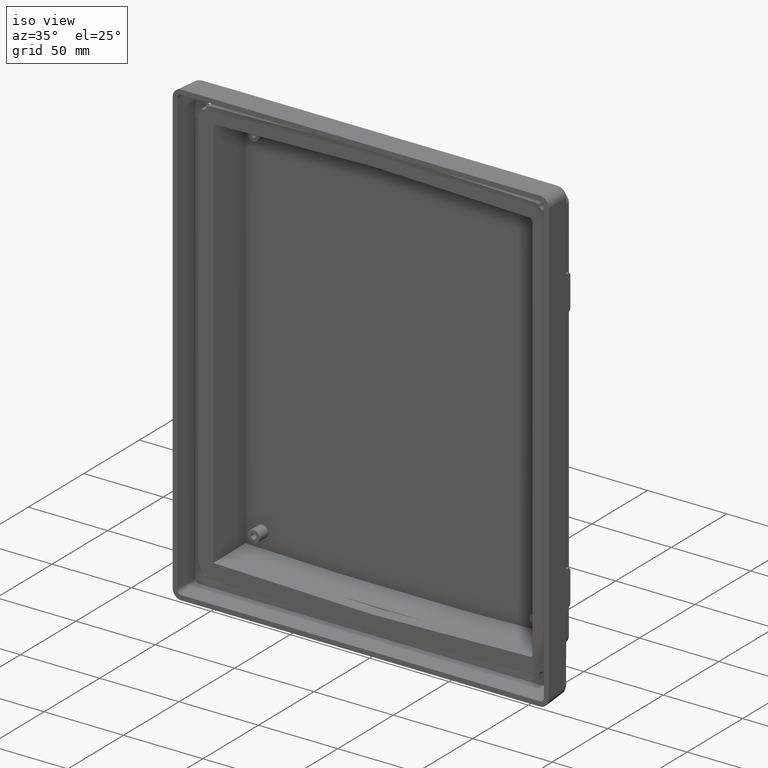
[diagram: clean part render]
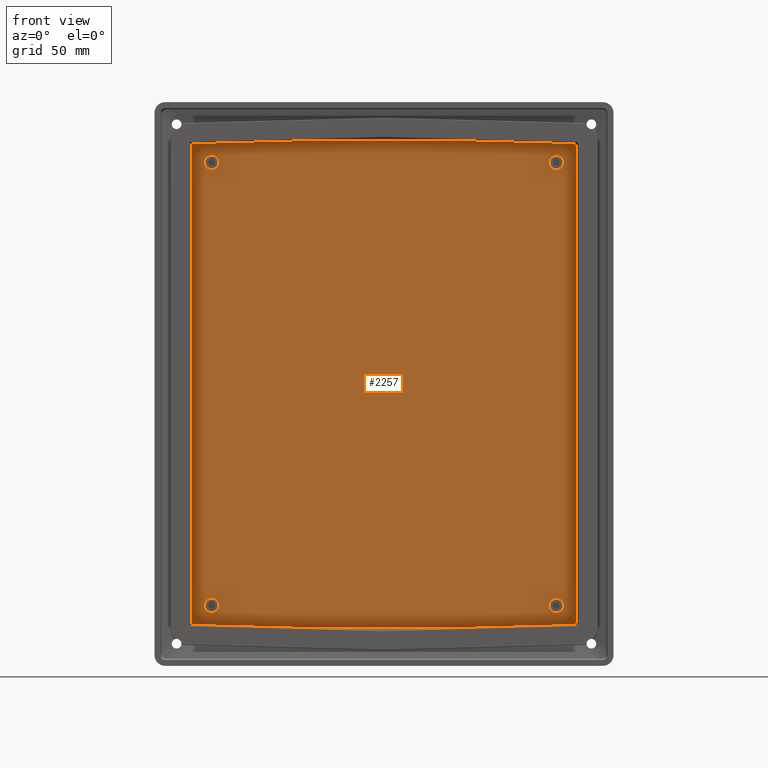
[diagram: tour spotlight — one face highlighted and labeled with its STEP entity id]
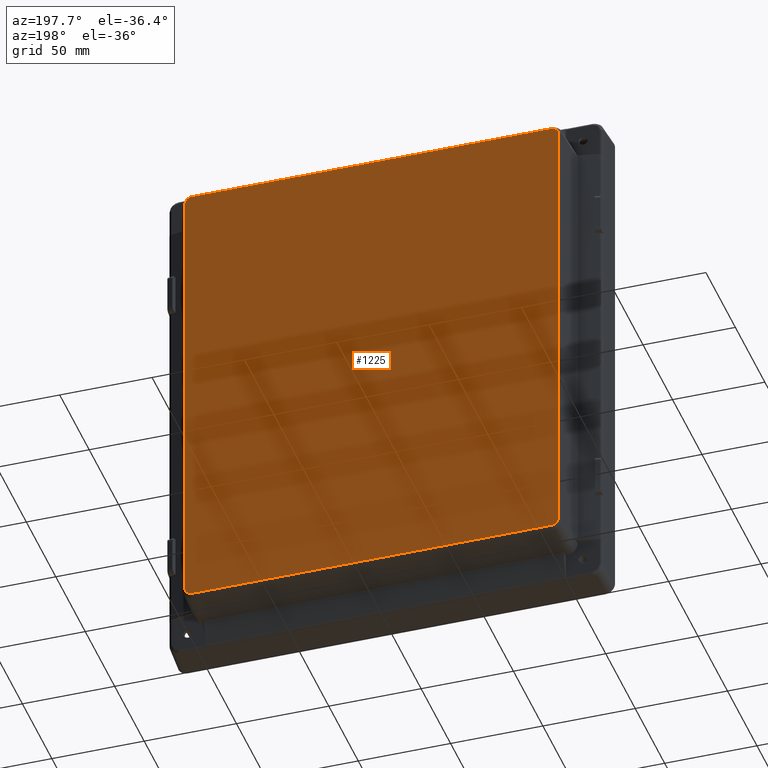
[diagram: tour spotlight — one face highlighted and labeled with its STEP entity id]
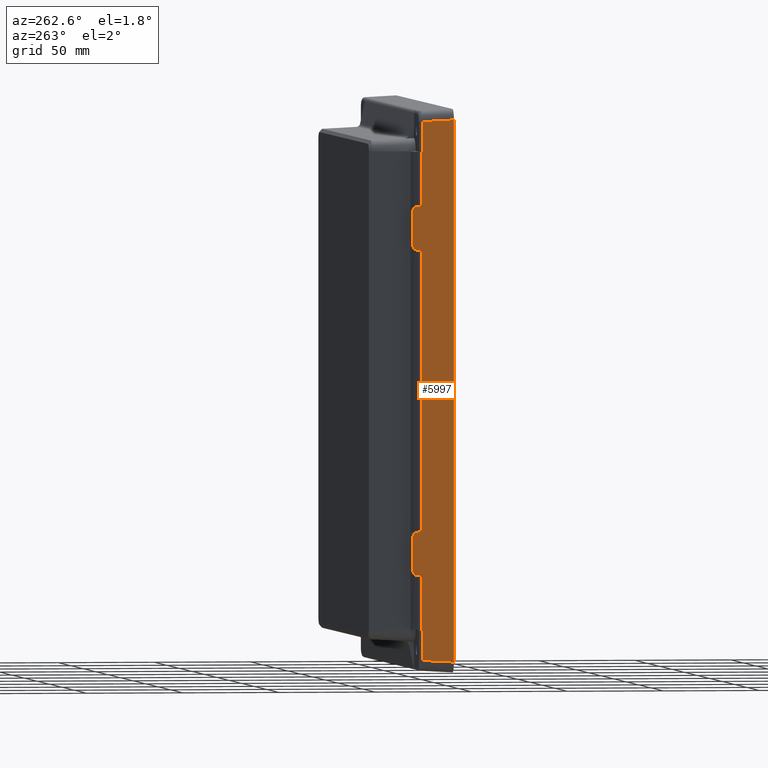
[diagram: tour spotlight — one face highlighted and labeled with its STEP entity id]
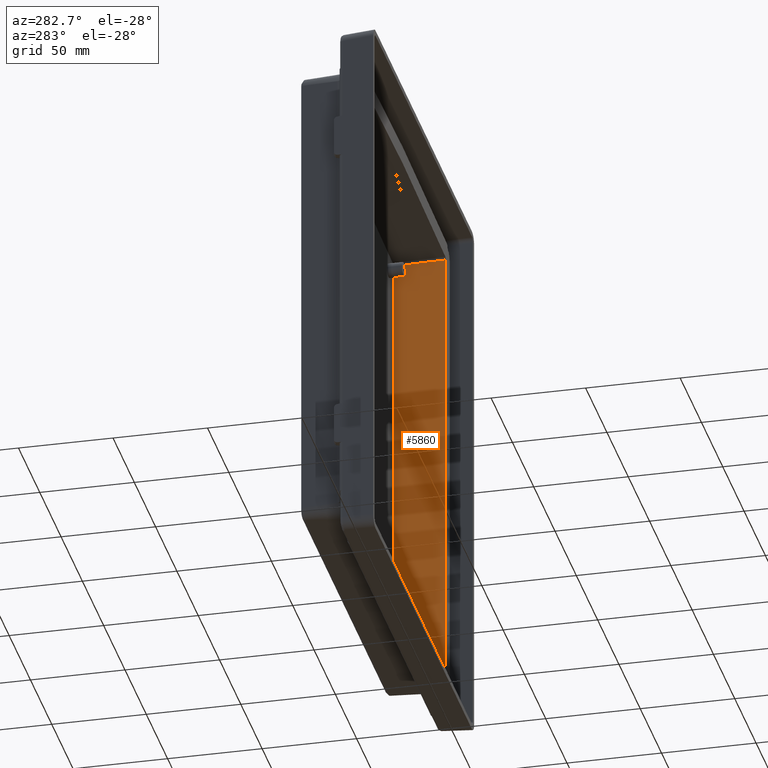
[diagram: tour spotlight — one face highlighted and labeled with its STEP entity id]
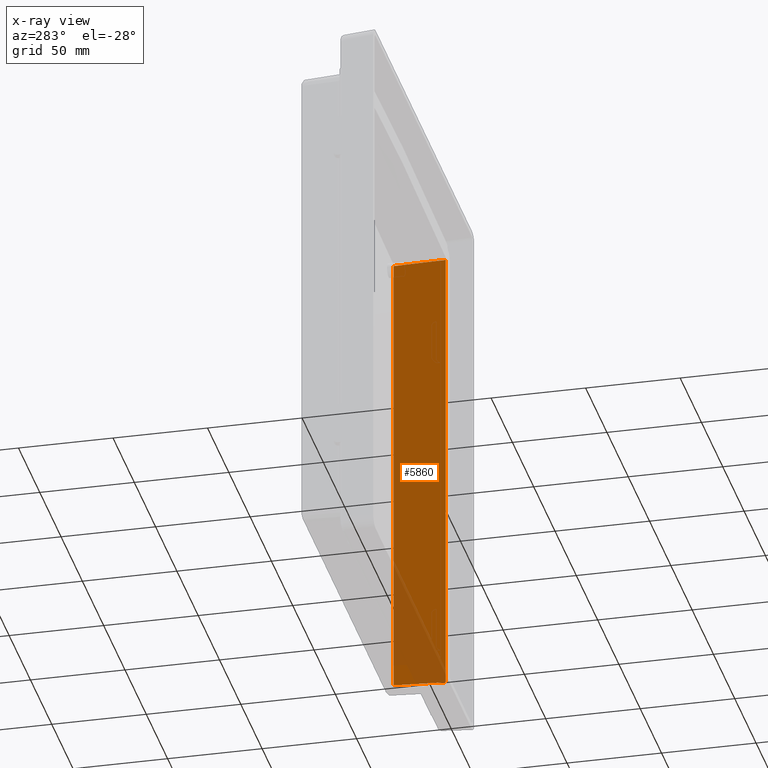
[diagram: x-ray of the same camera — body ghosted, this tour face saturated]
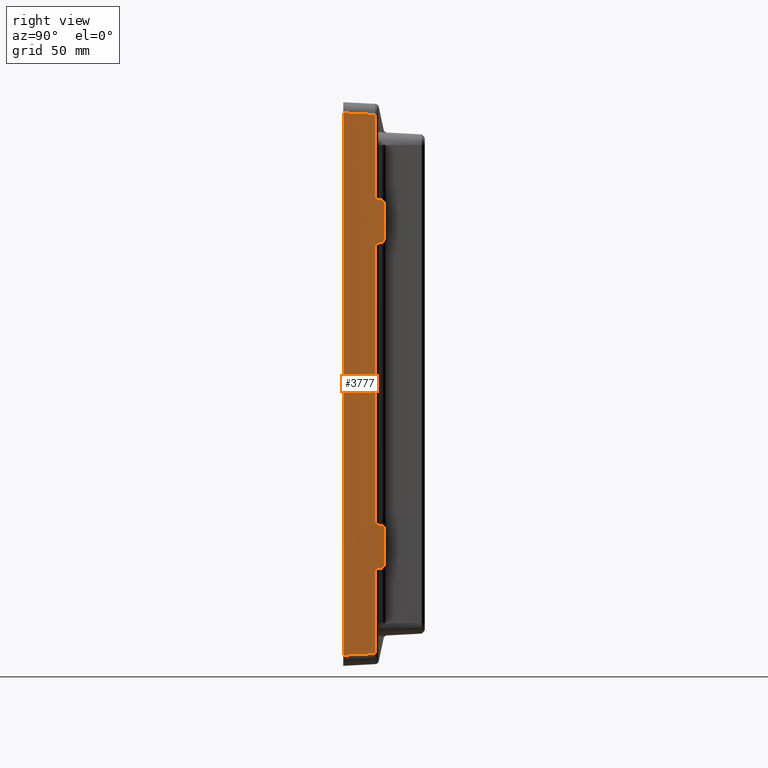
[diagram: tour spotlight — one face highlighted and labeled with its STEP entity id]
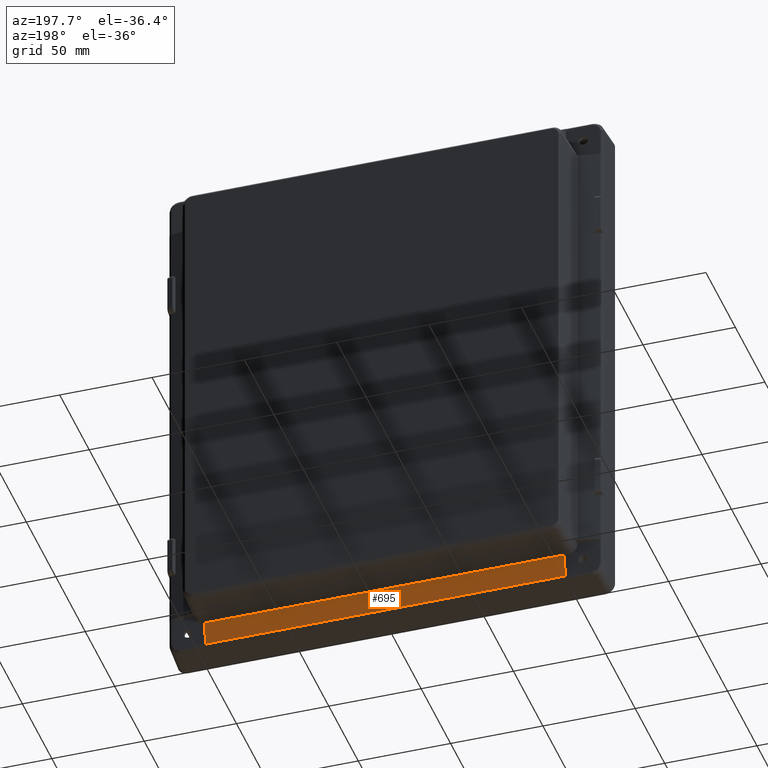
[diagram: tour spotlight — one face highlighted and labeled with its STEP entity id]
A machine part: a face-by-face anatomy tour. The part has 190 B-rep faces; the first image is the clean iso view, then the 6 largest visible faces are spotlighted one at a time (largest first), each with its STEP entity span.

Face 1 — front view, entity #2257. In plain terms, the highlighted planar face has unit normal (0, 1, 0).
Definition (entity closure, byte-faithful):
#14 = AXIS2_PLACEMENT_3D ( 'NONE', #5565, #6540, #2449 ) ;
#60 = CARTESIAN_POINT ( 'NONE',  ( -88.90000000000004800, 30.60000000000000100, 114.2999999999999400 ) ) ;
#93 = CARTESIAN_POINT ( 'NONE',  ( 99.42716768543292000, 30.60000000000000100, 123.4221343239192400 ) ) ;
#116 = CARTESIAN_POINT ( 'NONE',  ( -100.5370706981924700, 30.60000000000000100, -123.9317906277040200 ) ) ;
#120 = CIRCLE ( 'NONE', #3392, 3.750000000000003600 ) ;
#204 = LINE ( 'NONE', #4724, #3445 ) ;
#223 = VERTEX_POINT ( 'NONE', #4790 ) ;
#268 = ORIENTED_EDGE ( 'NONE', *, *, #2587, .T. ) ;
#287 = CIRCLE ( 'NONE', #5394, 3.750000000000003600 ) ;
#334 = CARTESIAN_POINT ( 'NONE',  ( 88.89999999999996300, 30.60000000000000100, -114.3000000000000000 ) ) ;
#399 =( BOUNDED_CURVE ( )  B_SPLINE_CURVE ( 3, ( #4322, #3780, #5814, #650 ),
 .UNSPECIFIED., .F., .F. ) 
 B_SPLINE_CURVE_WITH_KNOTS ( ( 4, 4 ),
 ( 2.369877718231932800, 3.833217129889278800 ),
 .UNSPECIFIED. ) 
 CURVE ( )  GEOMETRIC_REPRESENTATION_ITEM ( )  RATIONAL_B_SPLINE_CURVE ( ( 1.000000000000000000, 0.8293732586690414400, 0.8293732586690414400, 1.000000000000000000 ) ) 
 REPRESENTATION_ITEM ( '' )  );
#400 = PLANE ( 'NONE',  #14 ) ;
#433 = ORIENTED_EDGE ( 'NONE', *, *, #1417, .F. ) ;
#434 = LINE ( 'NONE', #6709, #3847 ) ;
#448 = LINE ( 'NONE', #560, #4267 ) ;
#493 = CARTESIAN_POINT ( 'NONE',  ( -99.41380563708222000, 30.60000000000000100, 123.9612043584956500 ) ) ;
#560 = CARTESIAN_POINT ( 'NONE',  ( -0.02797204684241310800, 30.60000000000000100, 126.5651789496274400 ) ) ;
#650 = CARTESIAN_POINT ( 'NONE',  ( 99.49165597754603100, 30.60000000000000100, -122.6187655489180100 ) ) ;
#696 = CARTESIAN_POINT ( 'NONE',  ( 88.89999999999996300, 30.60000000000000100, -114.3000000000000000 ) ) ;
#707 = ORIENTED_EDGE ( 'NONE', *, *, #4473, .T. ) ;
#755 = VERTEX_POINT ( 'NONE', #5036 ) ;
#815 = ORIENTED_EDGE ( 'NONE', *, *, #5965, .T. ) ;
#863 = CIRCLE ( 'NONE', #3607, 3.750000000000003600 ) ;
#880 = CARTESIAN_POINT ( 'NONE',  ( 88.89999999999996300, 30.60000000000000100, 110.5500000000000000 ) ) ;
#940 = CARTESIAN_POINT ( 'NONE',  ( -99.41380563708224800, 30.60000000000000500, -123.9612043584956500 ) ) ;
#1002 = VERTEX_POINT ( 'NONE', #3637 ) ;
#1050 = VERTEX_POINT ( 'NONE', #2579 ) ;
#1070 = DIRECTION ( 'NONE',  ( 0.0000000000000000000, 0.0000000000000000000, 1.000000000000000000 ) ) ;
#1086 = DIRECTION ( 'NONE',  ( -0.9996573249755572600, -0.0000000000000000000, 0.02617694830787319400 ) ) ;
#1118 = AXIS2_PLACEMENT_3D ( 'NONE', #5412, #2884, #3337 ) ;
#1251 = LINE ( 'NONE', #3281, #4786 ) ;
#1417 = EDGE_CURVE ( 'NONE', #1466, #755, #5735, .T. ) ;
#1466 = VERTEX_POINT ( 'NONE', #4576 ) ;
#1473 = ORIENTED_EDGE ( 'NONE', *, *, #3286, .T. ) ;
#1508 = EDGE_LOOP ( 'NONE', ( #707, #1846, #3812, #4962, #3142, #815, #5006, #5479, #268, #433, #5103, #1473 ) ) ;
#1522 = FACE_OUTER_BOUND ( 'NONE', #1508, .T. ) ;
#1542 = EDGE_CURVE ( 'NONE', #6651, #4375, #5999, .T. ) ;
#1581 = CARTESIAN_POINT ( 'NONE',  ( 88.89999999999996300, 30.60000000000000100, 114.3000000000000000 ) ) ;
#1616 = EDGE_LOOP ( 'NONE', ( #6642, #2371 ) ) ;
#1642 = VERTEX_POINT ( 'NONE', #1710 ) ;
#1676 = EDGE_LOOP ( 'NONE', ( #6315, #3053 ) ) ;
#1687 = VERTEX_POINT ( 'NONE', #2182 ) ;
#1689 = CARTESIAN_POINT ( 'NONE',  ( 99.49165597754606000, 30.60000000000000100, 122.6187655489178100 ) ) ;
#1710 = CARTESIAN_POINT ( 'NONE',  ( -99.41380563708222000, 30.60000000000000100, 123.9612043584956500 ) ) ;
#1722 = VECTOR ( 'NONE', #1815, 1000.000000000000000 ) ;
#1725 = DIRECTION ( 'NONE',  ( -0.0000000000000000000, -1.000000000000000000, -0.0000000000000000000 ) ) ;
#1728 = LINE ( 'NONE', #116, #5049 ) ;
#1815 = DIRECTION ( 'NONE',  ( 1.000000000000000000, -0.0000000000000000000, -0.0000000000000000000 ) ) ;
#1846 = ORIENTED_EDGE ( 'NONE', *, *, #3225, .T. ) ;
#1888 = DIRECTION ( 'NONE',  ( 0.0000000000000000000, 0.0000000000000000000, 1.000000000000000000 ) ) ;
#1896 = DIRECTION ( 'NONE',  ( 0.0000000000000000000, 0.0000000000000000000, 1.000000000000000000 ) ) ;
#2038 = AXIS2_PLACEMENT_3D ( 'NONE', #1581, #3163, #3683 ) ;
#2063 = VERTEX_POINT ( 'NONE', #6449 ) ;
#2066 = CARTESIAN_POINT ( 'NONE',  ( -88.90000000000004800, 30.60000000000000100, 110.5499999999999400 ) ) ;
#2112 = EDGE_CURVE ( 'NONE', #1687, #1050, #3452, .T. ) ;
#2182 = CARTESIAN_POINT ( 'NONE',  ( -88.89999999999993500, 30.60000000000000100, -110.5500000000000300 ) ) ;
#2205 = CIRCLE ( 'NONE', #2038, 3.750000000000003600 ) ;
#2219 = CARTESIAN_POINT ( 'NONE',  ( 98.03662246108611100, 30.60000000000000100, -123.9972671691286900 ) ) ;
#2257 = ADVANCED_FACE ( 'NONE', ( #3284, #5886, #1522, #3781, #6052 ), #400, .F. ) ;
#2345 = CARTESIAN_POINT ( 'NONE',  ( -104.5000000000000100, 30.60000000000000100, -125.4916559775459200 ) ) ;
#2371 = ORIENTED_EDGE ( 'NONE', *, *, #6530, .F. ) ;
#2449 = DIRECTION ( 'NONE',  ( 0.0000000000000000000, -0.0000000000000000000, 1.000000000000000000 ) ) ;
#2509 = DIRECTION ( 'NONE',  ( 0.0000000000000000000, 0.0000000000000000000, 1.000000000000000000 ) ) ;
#2579 = CARTESIAN_POINT ( 'NONE',  ( -88.89999999999993500, 30.60000000000000100, -118.0500000000000300 ) ) ;
#2587 = EDGE_CURVE ( 'NONE', #2751, #755, #204, .T. ) ;
#2610 = EDGE_CURVE ( 'NONE', #4375, #1002, #448, .T. ) ;
#2642 = CARTESIAN_POINT ( 'NONE',  ( 40.96821627691107900, 30.60000000000000100, -125.4916559775459200 ) ) ;
#2650 = CARTESIAN_POINT ( 'NONE',  ( 98.84237529300436600, 30.60000000000000100, 123.9761677886679400 ) ) ;
#2654 = CIRCLE ( 'NONE', #3491, 3.750000000000003600 ) ;
#2703 = DIRECTION ( 'NONE',  ( -0.0000000000000000000, -1.000000000000000000, -0.0000000000000000000 ) ) ;
#2718 = VERTEX_POINT ( 'NONE', #2642 ) ;
#2725 = VERTEX_POINT ( 'NONE', #5199 ) ;
#2751 = VERTEX_POINT ( 'NONE', #5303 ) ;
#2758 = VERTEX_POINT ( 'NONE', #3233 ) ;
#2792 = CARTESIAN_POINT ( 'NONE',  ( -40.96821627691110700, 30.60000000000000100, 125.4916559775460000 ) ) ;
#2808 = VERTEX_POINT ( 'NONE', #2792 ) ;
#2814 = CARTESIAN_POINT ( 'NONE',  ( 98.03662246108611100, 30.60000000000000100, 123.9972671691286900 ) ) ;
#2884 = DIRECTION ( 'NONE',  ( -0.0000000000000000000, -1.000000000000000000, -0.0000000000000000000 ) ) ;
#2939 = EDGE_CURVE ( 'NONE', #1050, #1687, #120, .T. ) ;
#3022 = CARTESIAN_POINT ( 'NONE',  ( -99.46554399716750100, 30.60000000000000100, 123.7765267905572100 ) ) ;
#3053 = ORIENTED_EDGE ( 'NONE', *, *, #2939, .F. ) ;
#3142 = ORIENTED_EDGE ( 'NONE', *, *, #2610, .T. ) ;
#3163 = DIRECTION ( 'NONE',  ( -0.0000000000000000000, -1.000000000000000000, -0.0000000000000000000 ) ) ;
#3201 = EDGE_CURVE ( 'NONE', #223, #3319, #863, .T. ) ;
#3225 = EDGE_CURVE ( 'NONE', #6667, #4609, #399, .T. ) ;
#3233 = CARTESIAN_POINT ( 'NONE',  ( -40.96821627691110700, 30.60000000000000100, -125.4916559775459200 ) ) ;
#3281 = CARTESIAN_POINT ( 'NONE',  ( -100.5370706981924700, 30.60000000000000100, 123.9317906277040200 ) ) ;
#3284 = FACE_BOUND ( 'NONE', #1676, .T. ) ;
#3286 = EDGE_CURVE ( 'NONE', #2758, #2718, #5938, .T. ) ;
#3319 = VERTEX_POINT ( 'NONE', #4417 ) ;
#3337 = DIRECTION ( 'NONE',  ( 0.0000000000000000000, 0.0000000000000000000, 1.000000000000000000 ) ) ;
#3392 = AXIS2_PLACEMENT_3D ( 'NONE', #6589, #4563, #1896 ) ;
#3426 = VERTEX_POINT ( 'NONE', #2066 ) ;
#3445 = VECTOR ( 'NONE', #3689, 1000.000000000000000 ) ;
#3452 = CIRCLE ( 'NONE', #1118, 3.750000000000003600 ) ;
#3491 = AXIS2_PLACEMENT_3D ( 'NONE', #334, #5478, #1888 ) ;
#3495 = DIRECTION ( 'NONE',  ( -0.0000000000000000000, -1.000000000000000000, -0.0000000000000000000 ) ) ;
#3558 = ORIENTED_EDGE ( 'NONE', *, *, #4313, .F. ) ;
#3564 = CARTESIAN_POINT ( 'NONE',  ( -99.49165597754601700, 30.60000000000000100, 123.5864584314407800 ) ) ;
#3565 = ORIENTED_EDGE ( 'NONE', *, *, #4649, .F. ) ;
#3572 = DIRECTION ( 'NONE',  ( -1.000000000000000000, -0.0000000000000000000, -0.0000000000000000000 ) ) ;
#3587 = CARTESIAN_POINT ( 'NONE',  ( -99.49165597754601700, 30.60000000000000100, 123.3945339545614400 ) ) ;
#3607 = AXIS2_PLACEMENT_3D ( 'NONE', #696, #1725, #4262 ) ;
#3637 = CARTESIAN_POINT ( 'NONE',  ( 40.96821627691107900, 30.60000000000000100, 125.4916559775460000 ) ) ;
#3665 = LINE ( 'NONE', #4315, #3826 ) ;
#3683 = DIRECTION ( 'NONE',  ( 0.0000000000000000000, 0.0000000000000000000, 1.000000000000000000 ) ) ;
#3689 = DIRECTION ( 'NONE',  ( -1.063432015924479500E-016, 0.0000000000000000000, -1.000000000000000000 ) ) ;
#3711 = ORIENTED_EDGE ( 'NONE', *, *, #5133, .F. ) ;
#3751 = ORIENTED_EDGE ( 'NONE', *, *, #3201, .F. ) ;
#3780 = CARTESIAN_POINT ( 'NONE',  ( 98.84237529300428100, 30.60000000000000100, -123.9761677886679400 ) ) ;
#3781 = FACE_BOUND ( 'NONE', #5748, .T. ) ;
#3789 = DIRECTION ( 'NONE',  ( 0.9996573249755572600, -0.0000000000000000000, -0.02617694830787319800 ) ) ;
#3812 = ORIENTED_EDGE ( 'NONE', *, *, #4973, .T. ) ;
#3826 = VECTOR ( 'NONE', #5357, 1000.000000000000100 ) ;
#3847 = VECTOR ( 'NONE', #3572, 1000.000000000000000 ) ;
#4016 = DIRECTION ( 'NONE',  ( -0.0000000000000000000, -1.000000000000000000, -0.0000000000000000000 ) ) ;
#4100 = DIRECTION ( 'NONE',  ( 0.0000000000000000000, 0.0000000000000000000, 1.000000000000000000 ) ) ;
#4202 = EDGE_CURVE ( 'NONE', #2751, #1642, #5314, .T. ) ;
#4262 = DIRECTION ( 'NONE',  ( 0.0000000000000000000, 0.0000000000000000000, 1.000000000000000000 ) ) ;
#4267 = VECTOR ( 'NONE', #1086, 1000.000000000000100 ) ;
#4268 = DIRECTION ( 'NONE',  ( 1.063432015924479500E-016, -0.0000000000000000000, 1.000000000000000000 ) ) ;
#4306 = CARTESIAN_POINT ( 'NONE',  ( 99.49165597754606000, 30.60000000000000100, 122.6187655489178100 ) ) ;
#4313 = EDGE_CURVE ( 'NONE', #3426, #2725, #5683, .T. ) ;
#4315 = CARTESIAN_POINT ( 'NONE',  ( -0.02797204684241310800, 30.60000000000000100, -126.5651789496274400 ) ) ;
#4322 = CARTESIAN_POINT ( 'NONE',  ( 98.03662246108611100, 30.60000000000000100, -123.9972671691286900 ) ) ;
#4375 = VERTEX_POINT ( 'NONE', #2814 ) ;
#4398 = CARTESIAN_POINT ( 'NONE',  ( -88.90000000000004800, 30.60000000000000100, 114.2999999999999400 ) ) ;
#4417 = CARTESIAN_POINT ( 'NONE',  ( 88.89999999999996300, 30.60000000000000100, -110.5500000000000000 ) ) ;
#4473 = EDGE_CURVE ( 'NONE', #2718, #6667, #3665, .T. ) ;
#4563 = DIRECTION ( 'NONE',  ( -0.0000000000000000000, -1.000000000000000000, -0.0000000000000000000 ) ) ;
#4576 = CARTESIAN_POINT ( 'NONE',  ( -99.41380563708224800, 30.60000000000000500, -123.9612043584956500 ) ) ;
#4609 = VERTEX_POINT ( 'NONE', #5407 ) ;
#4649 = EDGE_CURVE ( 'NONE', #3319, #223, #2654, .T. ) ;
#4724 = CARTESIAN_POINT ( 'NONE',  ( -99.49165597754601700, 30.60000000000000100, 130.5000000000000000 ) ) ;
#4777 = EDGE_CURVE ( 'NONE', #2063, #5740, #287, .T. ) ;
#4786 = VECTOR ( 'NONE', #5374, 1000.000000000000100 ) ;
#4790 = CARTESIAN_POINT ( 'NONE',  ( 88.89999999999996300, 30.60000000000000100, -118.0500000000000000 ) ) ;
#4804 = VECTOR ( 'NONE', #4268, 1000.000000000000000 ) ;
#4927 = EDGE_LOOP ( 'NONE', ( #3711, #3558 ) ) ;
#4962 = ORIENTED_EDGE ( 'NONE', *, *, #1542, .T. ) ;
#4973 = EDGE_CURVE ( 'NONE', #4609, #6651, #6351, .T. ) ;
#4974 = AXIS2_PLACEMENT_3D ( 'NONE', #4398, #4016, #4100 ) ;
#5006 = ORIENTED_EDGE ( 'NONE', *, *, #6562, .T. ) ;
#5036 = CARTESIAN_POINT ( 'NONE',  ( -99.49165597754604600, 30.60000000000000500, -123.3945339545614100 ) ) ;
#5049 = VECTOR ( 'NONE', #3789, 1000.000000000000100 ) ;
#5062 = CARTESIAN_POINT ( 'NONE',  ( 88.89999999999996300, 30.60000000000000100, 114.3000000000000000 ) ) ;
#5103 = ORIENTED_EDGE ( 'NONE', *, *, #6612, .T. ) ;
#5133 = EDGE_CURVE ( 'NONE', #2725, #3426, #6685, .T. ) ;
#5199 = CARTESIAN_POINT ( 'NONE',  ( -88.90000000000004800, 30.60000000000000100, 118.0499999999999400 ) ) ;
#5303 = CARTESIAN_POINT ( 'NONE',  ( -99.49165597754601700, 30.60000000000000100, 123.3945339545614400 ) ) ;
#5314 =( BOUNDED_CURVE ( )  B_SPLINE_CURVE ( 3, ( #3587, #3564, #3022, #493 ),
 .UNSPECIFIED., .F., .F. ) 
 B_SPLINE_CURVE_WITH_KNOTS ( ( 4, 4 ),
 ( 5.499156671652545300, 5.772109014360043300 ),
 .UNSPECIFIED. ) 
 CURVE ( )  GEOMETRIC_REPRESENTATION_ITEM ( )  RATIONAL_B_SPLINE_CURVE ( ( 1.000000000000000000, 0.9938010488584920800, 0.9938010488584920800, 1.000000000000000000 ) ) 
 REPRESENTATION_ITEM ( '' )  );
#5357 = DIRECTION ( 'NONE',  ( 0.9996573249755572600, -0.0000000000000000000, 0.02617694830787319400 ) ) ;
#5374 = DIRECTION ( 'NONE',  ( -0.9996573249755572600, -0.0000000000000000000, -0.02617694830787319800 ) ) ;
#5394 = AXIS2_PLACEMENT_3D ( 'NONE', #5062, #3495, #2509 ) ;
#5407 = CARTESIAN_POINT ( 'NONE',  ( 99.49165597754603100, 30.60000000000000100, -122.6187655489180100 ) ) ;
#5412 = CARTESIAN_POINT ( 'NONE',  ( -88.89999999999993500, 30.60000000000000100, -114.3000000000000300 ) ) ;
#5478 = DIRECTION ( 'NONE',  ( -0.0000000000000000000, -1.000000000000000000, -0.0000000000000000000 ) ) ;
#5479 = ORIENTED_EDGE ( 'NONE', *, *, #4202, .F. ) ;
#5499 = CARTESIAN_POINT ( 'NONE',  ( -99.49165597754604600, 30.60000000000000500, -123.3945339545614100 ) ) ;
#5565 = CARTESIAN_POINT ( 'NONE',  ( -104.5000000000000100, 30.60000000000000100, 130.5000000000000000 ) ) ;
#5683 = CIRCLE ( 'NONE', #6147, 3.750000000000003600 ) ;
#5735 =( BOUNDED_CURVE ( )  B_SPLINE_CURVE ( 3, ( #940, #5970, #5989, #5499 ),
 .UNSPECIFIED., .F., .F. ) 
 B_SPLINE_CURVE_WITH_KNOTS ( ( 4, 4 ),
 ( 0.5110762928195427000, 0.7840286355270543700 ),
 .UNSPECIFIED. ) 
 CURVE ( )  GEOMETRIC_REPRESENTATION_ITEM ( )  RATIONAL_B_SPLINE_CURVE ( ( 1.000000000000000000, 0.9938010488584915200, 0.9938010488584915200, 1.000000000000000000 ) ) 
 REPRESENTATION_ITEM ( '' )  );
#5740 = VERTEX_POINT ( 'NONE', #880 ) ;
#5748 = EDGE_LOOP ( 'NONE', ( #3565, #3751 ) ) ;
#5814 = CARTESIAN_POINT ( 'NONE',  ( 99.42716768543277800, 30.60000000000000100, -123.4221343239193700 ) ) ;
#5886 = FACE_BOUND ( 'NONE', #1616, .T. ) ;
#5938 = LINE ( 'NONE', #2345, #1722 ) ;
#5965 = EDGE_CURVE ( 'NONE', #1002, #2808, #434, .T. ) ;
#5970 = CARTESIAN_POINT ( 'NONE',  ( -99.46554399716754300, 30.60000000000000900, -123.7765267905572100 ) ) ;
#5989 = CARTESIAN_POINT ( 'NONE',  ( -99.49165597754606000, 30.60000000000000900, -123.5864584314407800 ) ) ;
#5999 =( BOUNDED_CURVE ( )  B_SPLINE_CURVE ( 3, ( #1689, #93, #2650, #6259 ),
 .UNSPECIFIED., .F., .F. ) 
 B_SPLINE_CURVE_WITH_KNOTS ( ( 4, 4 ),
 ( 5.591560830879970500, 7.054900242537447000 ),
 .UNSPECIFIED. ) 
 CURVE ( )  GEOMETRIC_REPRESENTATION_ITEM ( )  RATIONAL_B_SPLINE_CURVE ( ( 1.000000000000000000, 0.8293732586690124600, 0.8293732586690124600, 1.000000000000000000 ) ) 
 REPRESENTATION_ITEM ( '' )  );
#6052 = FACE_BOUND ( 'NONE', #4927, .T. ) ;
#6147 = AXIS2_PLACEMENT_3D ( 'NONE', #60, #2703, #1070 ) ;
#6259 = CARTESIAN_POINT ( 'NONE',  ( 98.03662246108611100, 30.60000000000000100, 123.9972671691286900 ) ) ;
#6315 = ORIENTED_EDGE ( 'NONE', *, *, #2112, .F. ) ;
#6351 = LINE ( 'NONE', #6360, #4804 ) ;
#6360 = CARTESIAN_POINT ( 'NONE',  ( 99.49165597754606000, 30.60000000000000100, 130.4999999999999700 ) ) ;
#6449 = CARTESIAN_POINT ( 'NONE',  ( 88.89999999999996300, 30.60000000000000100, 118.0500000000000000 ) ) ;
#6530 = EDGE_CURVE ( 'NONE', #5740, #2063, #2205, .T. ) ;
#6540 = DIRECTION ( 'NONE',  ( 0.0000000000000000000, 1.000000000000000000, 0.0000000000000000000 ) ) ;
#6562 = EDGE_CURVE ( 'NONE', #2808, #1642, #1251, .T. ) ;
#6589 = CARTESIAN_POINT ( 'NONE',  ( -88.89999999999993500, 30.60000000000000100, -114.3000000000000300 ) ) ;
#6612 = EDGE_CURVE ( 'NONE', #1466, #2758, #1728, .T. ) ;
#6642 = ORIENTED_EDGE ( 'NONE', *, *, #4777, .F. ) ;
#6651 = VERTEX_POINT ( 'NONE', #4306 ) ;
#6667 = VERTEX_POINT ( 'NONE', #2219 ) ;
#6685 = CIRCLE ( 'NONE', #4974, 3.750000000000003600 ) ;
#6709 = CARTESIAN_POINT ( 'NONE',  ( -104.5000000000000100, 30.60000000000000100, 125.4916559775460000 ) ) ;

Face 2 — auxiliary view, entity #1225. In plain terms, the highlighted planar face has unit normal (0, 1, 0).
Definition (entity closure, byte-faithful):
#7 = CARTESIAN_POINT ( 'NONE',  ( -98.29423911057067200, 34.00000000000002800, 127.0372547930605000 ) ) ;
#45 = CARTESIAN_POINT ( 'NONE',  ( 100.3675752403771200, 33.99999999999999300, 125.6569440720817000 ) ) ;
#82 = ORIENTED_EDGE ( 'NONE', *, *, #843, .T. ) ;
#233 = CARTESIAN_POINT ( 'NONE',  ( 99.65694407212595300, 34.00000000000000700, -126.3675752403443700 ) ) ;
#278 = CARTESIAN_POINT ( 'NONE',  ( 101.1339308130039600, 34.00000000000000000, -123.5548802001824200 ) ) ;
#347 = CARTESIAN_POINT ( 'NONE',  ( -97.30417699759088600, 34.00000000000000000, -127.1330037502762000 ) ) ;
#353 = CARTESIAN_POINT ( 'NONE',  ( 97.30417699759088600, 34.00000000000000000, -127.1330037502762600 ) ) ;
#366 = CARTESIAN_POINT ( 'NONE',  ( -99.24182623647978100, 34.00000000000000700, -126.6440281517855200 ) ) ;
#616 = CARTESIAN_POINT ( 'NONE',  ( 97.55488020017659800, 34.00000000000000700, 127.1339308130040000 ) ) ;
#637 = CARTESIAN_POINT ( 'NONE',  ( 101.1348593914731600, 34.00000000000000700, 123.8059933008359400 ) ) ;
#643 = ORIENTED_EDGE ( 'NONE', *, *, #1595, .T. ) ;
#735 = CARTESIAN_POINT ( 'NONE',  ( 101.0123885963521000, 34.00000000000000000, -124.2905390636746400 ) ) ;
#744 = CARTESIAN_POINT ( 'NONE',  ( -101.0372547930606100, 34.00000000000000700, -124.2942391106131800 ) ) ;
#778 = CARTESIAN_POINT ( 'NONE',  ( 98.29423911062740200, 34.00000000000000700, -127.0372547930605800 ) ) ;
#843 = EDGE_CURVE ( 'NONE', #4075, #4599, #2917, .T. ) ;
#886 = ORIENTED_EDGE ( 'NONE', *, *, #1737, .T. ) ;
#1077 = CARTESIAN_POINT ( 'NONE',  ( 98.53245852204594300, 34.00000000000000000, 126.9382708566731400 ) ) ;
#1087 = CARTESIAN_POINT ( 'NONE',  ( -99.65694407209538500, 34.00000000000000700, 126.3675752403807000 ) ) ;
#1153 = CARTESIAN_POINT ( 'NONE',  ( 98.29053906366594600, 34.00000000000000000, 127.0123885963521100 ) ) ;
#1189 = B_SPLINE_CURVE_WITH_KNOTS ( 'NONE', 3,
 ( #3194, #616, #5799, #1153, #1077, #2671, #6316, #45, #3159, #3216, #637, #5224 ),
 .UNSPECIFIED., .F., .F.,
 ( 4, 2, 2, 2, 2, 4 ),
 ( 0.0000000000000000000, 0.1249999999999957300, 0.2499999999999914500, 0.4999999999999943400, 0.7499999999999972200, 1.000000000000000000 ),
 .UNSPECIFIED. ) ;
#1203 = VERTEX_POINT ( 'NONE', #4310 ) ;
#1225 = ADVANCED_FACE ( 'NONE', ( #2500 ), #3916, .T. ) ;
#1241 = CARTESIAN_POINT ( 'NONE',  ( 99.24358974309760100, 34.00000000000000000, -126.6431251170166400 ) ) ;
#1289 = CARTESIAN_POINT ( 'NONE',  ( 97.80599330087022700, 34.00000000000000000, -127.1348593914731700 ) ) ;
#1338 = CARTESIAN_POINT ( 'NONE',  ( 100.6440281517694300, 34.00000000000000700, -125.2418262364843000 ) ) ;
#1340 = EDGE_CURVE ( 'NONE', #6272, #4129, #6237, .T. ) ;
#1399 = CARTESIAN_POINT ( 'NONE',  ( -101.1330037502762500, 34.00000000000000000, 123.3041769975909100 ) ) ;
#1595 = EDGE_CURVE ( 'NONE', #5130, #4075, #1189, .T. ) ;
#1680 = DIRECTION ( 'NONE',  ( -1.000000000000000000, 0.0000000000000000000, 0.0000000000000000000 ) ) ;
#1737 = EDGE_CURVE ( 'NONE', #1203, #5130, #1741, .T. ) ;
#1741 = LINE ( 'NONE', #4737, #3688 ) ;
#1821 = CARTESIAN_POINT ( 'NONE',  ( 101.1330037502762600, 34.00000000000000000, -123.3041769975908900 ) ) ;
#1824 = DIRECTION ( 'NONE',  ( 0.0000000000000000000, -0.0000000000000000000, 1.000000000000000000 ) ) ;
#1903 = EDGE_CURVE ( 'NONE', #4196, #1203, #5148, .T. ) ;
#1904 = CARTESIAN_POINT ( 'NONE',  ( -98.29053906364903500, 34.00000000000000700, -127.0123885963519700 ) ) ;
#1927 = CARTESIAN_POINT ( 'NONE',  ( -99.65682821575104800, 33.99999999999999300, -126.3674593840177800 ) ) ;
#2033 = EDGE_CURVE ( 'NONE', #4129, #4196, #5404, .T. ) ;
#2289 = AXIS2_PLACEMENT_3D ( 'NONE', #2356, #6417, #1824 ) ;
#2356 = CARTESIAN_POINT ( 'NONE',  ( -104.5000000000000100, 34.00000000000000000, 130.5000000000000000 ) ) ;
#2500 = FACE_OUTER_BOUND ( 'NONE', #3786, .T. ) ;
#2574 = VECTOR ( 'NONE', #5906, 1000.000000000000000 ) ;
#2660 = CARTESIAN_POINT ( 'NONE',  ( -99.24358974315430300, 34.00000000000000000, 126.6431251170167500 ) ) ;
#2671 = CARTESIAN_POINT ( 'NONE',  ( 99.24182623649583900, 33.99999999999999300, 126.6440281517695300 ) ) ;
#2694 = CARTESIAN_POINT ( 'NONE',  ( -101.1348593914731600, 34.00000000000000000, -123.8059933008559700 ) ) ;
#2700 = CARTESIAN_POINT ( 'NONE',  ( -100.6440281517675900, 34.00000000000000700, 125.2418262364803400 ) ) ;
#2708 = B_SPLINE_CURVE_WITH_KNOTS ( 'NONE', 3,
 ( #1821, #278, #4921, #735, #5424, #1338, #4946, #233, #1241, #778, #1289, #4894 ),
 .UNSPECIFIED., .F., .F.,
 ( 4, 2, 2, 2, 2, 4 ),
 ( 0.0000000000000000000, 0.1250000000000000000, 0.2500000000000000000, 0.5000000000000000000, 0.7500000000000000000, 1.000000000000000000 ),
 .UNSPECIFIED. ) ;
#2914 = CARTESIAN_POINT ( 'NONE',  ( -97.30417699759088600, 34.00000000000000000, -127.1330037502762000 ) ) ;
#2917 = LINE ( 'NONE', #3933, #4926 ) ;
#2964 = LINE ( 'NONE', #5339, #3763 ) ;
#3066 = CARTESIAN_POINT ( 'NONE',  ( 101.1330037502762900, 34.00000000000000000, 123.3041769975908600 ) ) ;
#3120 = CARTESIAN_POINT ( 'NONE',  ( -101.1339308130039900, 34.00000000000000700, 123.5548802001866200 ) ) ;
#3159 = CARTESIAN_POINT ( 'NONE',  ( 100.6431251170167700, 33.99999999999999300, 125.2435897431318500 ) ) ;
#3194 = CARTESIAN_POINT ( 'NONE',  ( 97.30417699759088600, 34.00000000000000000, 127.1330037502762300 ) ) ;
#3216 = CARTESIAN_POINT ( 'NONE',  ( 101.0372547930606300, 34.00000000000001400, 124.2942391105931100 ) ) ;
#3488 = CARTESIAN_POINT ( 'NONE',  ( -101.1330037502762700, 34.00000000000000000, -123.3041769975908900 ) ) ;
#3644 = CARTESIAN_POINT ( 'NONE',  ( -97.30417699759085800, 34.00000000000000000, 127.1330037502762600 ) ) ;
#3661 = ORIENTED_EDGE ( 'NONE', *, *, #5454, .T. ) ;
#3688 = VECTOR ( 'NONE', #5769, 1000.000000000000000 ) ;
#3763 = VECTOR ( 'NONE', #1680, 1000.000000000000000 ) ;
#3786 = EDGE_LOOP ( 'NONE', ( #3661, #4693, #5190, #6149, #886, #643, #82, #4220 ) ) ;
#3865 = CARTESIAN_POINT ( 'NONE',  ( 97.30417699759088600, 34.00000000000000000, 127.1330037502762300 ) ) ;
#3916 = PLANE ( 'NONE',  #2289 ) ;
#3933 = CARTESIAN_POINT ( 'NONE',  ( 101.1330037502762600, 34.00000000000000000, -123.2256730632264700 ) ) ;
#4075 = VERTEX_POINT ( 'NONE', #3066 ) ;
#4129 = VERTEX_POINT ( 'NONE', #5037 ) ;
#4196 = VERTEX_POINT ( 'NONE', #1399 ) ;
#4220 = ORIENTED_EDGE ( 'NONE', *, *, #5131, .T. ) ;
#4236 = CARTESIAN_POINT ( 'NONE',  ( -101.1099931947647000, 33.99999999999999300, 123.8022932539236900 ) ) ;
#4310 = CARTESIAN_POINT ( 'NONE',  ( -97.30417699759085800, 34.00000000000000000, 127.1330037502762600 ) ) ;
#4502 = DIRECTION ( 'NONE',  ( -1.063432015924479500E-016, 0.0000000000000000000, -1.000000000000000000 ) ) ;
#4599 = VERTEX_POINT ( 'NONE', #4881 ) ;
#4693 = ORIENTED_EDGE ( 'NONE', *, *, #1340, .T. ) ;
#4725 = CARTESIAN_POINT ( 'NONE',  ( -101.0123885963521100, 33.99999999999999300, 124.2905390636809200 ) ) ;
#4737 = CARTESIAN_POINT ( 'NONE',  ( 97.22567306322643800, 34.00000000000000000, 127.1330037502762300 ) ) ;
#4881 = CARTESIAN_POINT ( 'NONE',  ( 101.1330037502762600, 34.00000000000000000, -123.3041769975908900 ) ) ;
#4894 = CARTESIAN_POINT ( 'NONE',  ( 97.30417699759088600, 34.00000000000000000, -127.1330037502762600 ) ) ;
#4921 = CARTESIAN_POINT ( 'NONE',  ( 101.1099931947647100, 34.00000000000000000, -123.8022932539175100 ) ) ;
#4926 = VECTOR ( 'NONE', #4502, 1000.000000000000000 ) ;
#4946 = CARTESIAN_POINT ( 'NONE',  ( 100.3674593839878100, 34.00000000000000000, -125.6568282157694200 ) ) ;
#4991 = CARTESIAN_POINT ( 'NONE',  ( -97.80229325389183300, 34.00000000000000000, -127.1099931947646000 ) ) ;
#5037 = CARTESIAN_POINT ( 'NONE',  ( -101.1330037502762700, 34.00000000000000000, -123.3041769975908900 ) ) ;
#5041 = CARTESIAN_POINT ( 'NONE',  ( -97.55488020016535700, 34.00000000000001400, -127.1339308130038900 ) ) ;
#5130 = VERTEX_POINT ( 'NONE', #3865 ) ;
#5131 = EDGE_CURVE ( 'NONE', #4599, #5668, #2708, .T. ) ;
#5148 = B_SPLINE_CURVE_WITH_KNOTS ( 'NONE', 3,
 ( #6250, #3120, #4236, #4725, #5787, #2700, #5697, #1087, #2660, #7, #6284, #3644 ),
 .UNSPECIFIED., .F., .F.,
 ( 4, 2, 2, 2, 2, 4 ),
 ( 0.0000000000000000000, 0.1250000000000047200, 0.2500000000000094400, 0.5000000000000063300, 0.7500000000000032200, 1.000000000000000000 ),
 .UNSPECIFIED. ) ;
#5190 = ORIENTED_EDGE ( 'NONE', *, *, #2033, .T. ) ;
#5224 = CARTESIAN_POINT ( 'NONE',  ( 101.1330037502762900, 34.00000000000000000, 123.3041769975908600 ) ) ;
#5339 = CARTESIAN_POINT ( 'NONE',  ( -97.22567306322646600, 34.00000000000000000, -127.1330037502762000 ) ) ;
#5359 = CARTESIAN_POINT ( 'NONE',  ( -101.1330037502762500, 34.00000000000000000, 123.2256730632263500 ) ) ;
#5404 = LINE ( 'NONE', #5359, #2574 ) ;
#5424 = CARTESIAN_POINT ( 'NONE',  ( 100.9382708566732100, 34.00000000000000000, -124.5324585220515800 ) ) ;
#5454 = EDGE_CURVE ( 'NONE', #5668, #6272, #2964, .T. ) ;
#5559 = CARTESIAN_POINT ( 'NONE',  ( -100.3675752403627500, 34.00000000000001400, -125.6569440720960100 ) ) ;
#5629 = CARTESIAN_POINT ( 'NONE',  ( -100.6431251170166700, 33.99999999999999300, -125.2435897431118100 ) ) ;
#5668 = VERTEX_POINT ( 'NONE', #353 ) ;
#5697 = CARTESIAN_POINT ( 'NONE',  ( -100.3674593840183000, 33.99999999999999300, 125.6568282157330700 ) ) ;
#5769 = DIRECTION ( 'NONE',  ( 1.000000000000000000, 0.0000000000000000000, 0.0000000000000000000 ) ) ;
#5787 = CARTESIAN_POINT ( 'NONE',  ( -100.9382708566740800, 34.00000000000000000, 124.5324585220536200 ) ) ;
#5799 = CARTESIAN_POINT ( 'NONE',  ( 97.80229325390872900, 33.99999999999999300, 127.1099931947646300 ) ) ;
#5906 = DIRECTION ( 'NONE',  ( 1.063432015924479500E-016, 0.0000000000000000000, 1.000000000000000000 ) ) ;
#6055 = CARTESIAN_POINT ( 'NONE',  ( -98.53245852205384400, 34.00000000000000000, -126.9382708566651400 ) ) ;
#6149 = ORIENTED_EDGE ( 'NONE', *, *, #1903, .T. ) ;
#6237 = B_SPLINE_CURVE_WITH_KNOTS ( 'NONE', 3,
 ( #347, #5041, #4991, #1904, #6055, #366, #1927, #5559, #5629, #744, #2694, #3488 ),
 .UNSPECIFIED., .F., .F.,
 ( 4, 2, 2, 2, 2, 4 ),
 ( 0.0000000000000000000, 0.1250000000000019700, 0.2500000000000039400, 0.5000000000000026600, 0.7500000000000013300, 1.000000000000000000 ),
 .UNSPECIFIED. ) ;
#6250 = CARTESIAN_POINT ( 'NONE',  ( -101.1330037502762500, 34.00000000000000000, 123.3041769975909100 ) ) ;
#6272 = VERTEX_POINT ( 'NONE', #2914 ) ;
#6284 = CARTESIAN_POINT ( 'NONE',  ( -97.80599330081345500, 34.00000000000000000, 127.1348593914729600 ) ) ;
#6316 = CARTESIAN_POINT ( 'NONE',  ( 99.65682821573673800, 33.99999999999999300, 126.3674593840320500 ) ) ;
#6417 = DIRECTION ( 'NONE',  ( 0.0000000000000000000, 1.000000000000000000, 0.0000000000000000000 ) ) ;

Face 3 — auxiliary view, entity #5997. In plain terms, the highlighted planar face has unit normal (-0.9986, 0.0523, 0).
Definition (entity closure, byte-faithful):
#5 = VERTEX_POINT ( 'NONE', #1412 ) ;
#13 = ORIENTED_EDGE ( 'NONE', *, *, #4097, .F. ) ;
#17 = DIRECTION ( 'NONE',  ( -0.05233595624294395300, -0.9986295347545739400, 0.0000000000000000000 ) ) ;
#49 = CARTESIAN_POINT ( 'NONE',  ( -117.3133757005376800, 13.10157211115623500, -93.15207086657025600 ) ) ;
#173 = EDGE_CURVE ( 'NONE', #2920, #3228, #2960, .T. ) ;
#336 = VECTOR ( 'NONE', #3416, 1000.000000000000000 ) ;
#444 = CARTESIAN_POINT ( 'NONE',  ( -117.3638935439052800, 12.13763423669021600, -95.09886345526442100 ) ) ;
#485 = EDGE_CURVE ( 'NONE', #5240, #3228, #3719, .T. ) ;
#496 = DIRECTION ( 'NONE',  ( -2.392624260829502000E-016, 1.865658150657128100E-019, -1.000000000000000000 ) ) ;
#530 = CARTESIAN_POINT ( 'NONE',  ( -117.3133757005377000, 13.10157211115623200, -73.72442828017609900 ) ) ;
#544 = VERTEX_POINT ( 'NONE', #5408 ) ;
#545 = ORIENTED_EDGE ( 'NONE', *, *, #5079, .T. ) ;
#550 = CARTESIAN_POINT ( 'NONE',  ( -118.4192622342642900, -7.999999999999996400, 145.0000000000000300 ) ) ;
#597 = FACE_OUTER_BOUND ( 'NONE', #6282, .T. ) ;
#651 = LINE ( 'NONE', #550, #6583 ) ;
#748 = CARTESIAN_POINT ( 'NONE',  ( -116.8891278050473200, 21.19670419448806000, 122.8794679983767800 ) ) ;
#776 = LINE ( 'NONE', #3846, #1979 ) ;
#782 = DIRECTION ( 'NONE',  ( 0.05226902705914251300, 0.9973524498500607700, -0.05055729016049581600 ) ) ;
#792 = CARTESIAN_POINT ( 'NONE',  ( -117.5602449182769500, 8.391026823481112700, -123.5505851116063500 ) ) ;
#838 = VECTOR ( 'NONE', #4934, 1000.000000000000200 ) ;
#871 = VERTEX_POINT ( 'NONE', #2034 ) ;
#876 = DIRECTION ( 'NONE',  ( -0.0000000000000000000, -0.0000000000000000000, -1.000000000000000000 ) ) ;
#890 = ORIENTED_EDGE ( 'NONE', *, *, #4664, .T. ) ;
#917 = CARTESIAN_POINT ( 'NONE',  ( -117.3133757005376800, 13.10157211115623500, -72.95000000000001700 ) ) ;
#931 = EDGE_CURVE ( 'NONE', #5240, #3308, #5978, .T. ) ;
#1032 = VERTEX_POINT ( 'NONE', #49 ) ;
#1126 = CARTESIAN_POINT ( 'NONE',  ( -117.5602449182768900, 8.391026823481114500, 139.0677824771267700 ) ) ;
#1235 = EDGE_CURVE ( 'NONE', #5459, #6628, #6292, .T. ) ;
#1306 = ORIENTED_EDGE ( 'NONE', *, *, #5013, .T. ) ;
#1310 = CARTESIAN_POINT ( 'NONE',  ( -117.3133757005376800, 13.10157211115623500, 74.84792913342977300 ) ) ;
#1314 = EDGE_CURVE ( 'NONE', #5522, #1032, #3456, .T. ) ;
#1412 = CARTESIAN_POINT ( 'NONE',  ( -117.5562397905034100, 8.467449213979881200, -123.5465799838328100 ) ) ;
#1509 = VECTOR ( 'NONE', #4227, 1000.000000000000000 ) ;
#1556 = AXIS2_PLACEMENT_3D ( 'NONE', #4173, #6235, #17 ) ;
#1580 = CARTESIAN_POINT ( 'NONE',  ( -117.4160686870532400, 11.14207319858128800, 72.85067006392063100 ) ) ;
#1594 = VECTOR ( 'NONE', #4648, 999.9999999999998900 ) ;
#1598 = CARTESIAN_POINT ( 'NONE',  ( -118.4192622342642900, -7.999999999999996400, 139.9267997931141800 ) ) ;
#1742 = CARTESIAN_POINT ( 'NONE',  ( -117.4160686870532400, 11.14207319858128800, 72.85067006392063100 ) ) ;
#1800 = EDGE_CURVE ( 'NONE', #1032, #5994, #1886, .T. ) ;
#1866 = ORIENTED_EDGE ( 'NONE', *, *, #2487, .F. ) ;
#1873 = CARTESIAN_POINT ( 'NONE',  ( -117.3552783993964300, 12.30202098664717000, 95.09053044458461600 ) ) ;
#1886 =( BOUNDED_CURVE ( )  B_SPLINE_CURVE ( 3, ( #3220, #6367, #4879, #2260 ),
 .UNSPECIFIED., .F., .T. ) 
 B_SPLINE_CURVE_WITH_KNOTS ( ( 4, 4 ),
 ( 9.301582569530504200E-016, 1.518436449235067700 ),
 .UNSPECIFIED. ) 
 CURVE ( )  GEOMETRIC_REPRESENTATION_ITEM ( )  RATIONAL_B_SPLINE_CURVE ( ( 1.000000000000000000, 0.8169162473415250100, 0.8169162473415250100, 1.000000000000000000 ) ) 
 REPRESENTATION_ITEM ( '' )  );
#1921 = ORIENTED_EDGE ( 'NONE', *, *, #4438, .T. ) ;
#1979 = VECTOR ( 'NONE', #2291, 1000.000000000000200 ) ;
#2003 = CARTESIAN_POINT ( 'NONE',  ( -117.3552783993964700, 12.30202098664715600, -72.90946955541541300 ) ) ;
#2024 = DIRECTION ( 'NONE',  ( -0.05226442768871403900, -0.9972646886342372300, -0.05226442768871403900 ) ) ;
#2034 = CARTESIAN_POINT ( 'NONE',  ( -117.5562397905033500, 8.467449213979879400, 123.5465799838328100 ) ) ;
#2057 = VECTOR ( 'NONE', #5677, 1000.000000000000000 ) ;
#2147 = LINE ( 'NONE', #5725, #5641 ) ;
#2152 = CARTESIAN_POINT ( 'NONE',  ( -117.5562397905033700, 8.467449213979881200, 95.20722333784914300 ) ) ;
#2188 = CARTESIAN_POINT ( 'NONE',  ( -117.5562397905033700, 8.467449213979881200, 95.28491063363524900 ) ) ;
#2201 = LINE ( 'NONE', #748, #838 ) ;
#2217 = CARTESIAN_POINT ( 'NONE',  ( -117.5602449182769500, 8.391026823481111000, -123.3041769975908300 ) ) ;
#2231 = CARTESIAN_POINT ( 'NONE',  ( -117.5602449182768900, 8.391026823481111000, 123.3041769975908300 ) ) ;
#2260 = CARTESIAN_POINT ( 'NONE',  ( -117.4160686870532800, 11.14207319858128100, -95.14932993607942500 ) ) ;
#2274 = ORIENTED_EDGE ( 'NONE', *, *, #2547, .T. ) ;
#2291 = DIRECTION ( 'NONE',  ( -0.05226442768871403900, -0.9972646886342372300, -0.05226442768871403200 ) ) ;
#2318 = LINE ( 'NONE', #2152, #5231 ) ;
#2487 = EDGE_CURVE ( 'NONE', #6484, #5994, #6359, .T. ) ;
#2520 = VERTEX_POINT ( 'NONE', #6674 ) ;
#2547 = EDGE_CURVE ( 'NONE', #3645, #5522, #6114, .T. ) ;
#2596 = CARTESIAN_POINT ( 'NONE',  ( -117.5562397905034100, 8.467449213979881200, -72.79277666215089900 ) ) ;
#2621 = PLANE ( 'NONE',  #1556 ) ;
#2646 = LINE ( 'NONE', #4034, #2057 ) ;
#2669 = VECTOR ( 'NONE', #782, 1000.000000000000200 ) ;
#2672 = CARTESIAN_POINT ( 'NONE',  ( -117.3133757005376800, 13.10157211115623500, 74.84792913342977300 ) ) ;
#2690 = DIRECTION ( 'NONE',  ( -2.392624260829502000E-016, 1.865658150657128100E-019, -1.000000000000000000 ) ) ;
#2734 = VERTEX_POINT ( 'NONE', #1598 ) ;
#2738 = VERTEX_POINT ( 'NONE', #5219 ) ;
#2772 = ORIENTED_EDGE ( 'NONE', *, *, #3049, .T. ) ;
#2785 = DIRECTION ( 'NONE',  ( -2.392722035830079000E-016, -1.048049591249079000E-033, -1.000000000000000000 ) ) ;
#2904 = CARTESIAN_POINT ( 'NONE',  ( -117.4160686870532400, 11.14207319858129000, 95.14932993607939700 ) ) ;
#2920 = VERTEX_POINT ( 'NONE', #1310 ) ;
#2950 = CARTESIAN_POINT ( 'NONE',  ( -117.3133757005376500, 13.10157211115624200, 94.27557171982397200 ) ) ;
#2960 =( BOUNDED_CURVE ( )  B_SPLINE_CURVE ( 3, ( #2672, #3600, #4665, #1580 ),
 .UNSPECIFIED., .F., .F. ) 
 B_SPLINE_CURVE_WITH_KNOTS ( ( 4, 4 ),
 ( 3.141592653589794000, 4.660029102824861300 ),
 .UNSPECIFIED. ) 
 CURVE ( )  GEOMETRIC_REPRESENTATION_ITEM ( )  RATIONAL_B_SPLINE_CURVE ( ( 1.000000000000000000, 0.8169162473415250100, 0.8169162473415250100, 1.000000000000000000 ) ) 
 REPRESENTATION_ITEM ( '' )  );
#2993 = ORIENTED_EDGE ( 'NONE', *, *, #485, .F. ) ;
#3039 = CARTESIAN_POINT ( 'NONE',  ( -117.5562397905033700, 8.467449213979881200, 72.71508936636476500 ) ) ;
#3049 = EDGE_CURVE ( 'NONE', #2734, #6081, #2147, .T. ) ;
#3058 = CARTESIAN_POINT ( 'NONE',  ( -117.3133757005376800, 13.10157211115623500, -74.84792913342977300 ) ) ;
#3080 = CARTESIAN_POINT ( 'NONE',  ( -117.4160686870532800, 11.14207319858128100, -72.85067006392060300 ) ) ;
#3166 = ORIENTED_EDGE ( 'NONE', *, *, #1314, .T. ) ;
#3220 = CARTESIAN_POINT ( 'NONE',  ( -117.3133757005376800, 13.10157211115623500, -93.15207086657025600 ) ) ;
#3228 = VERTEX_POINT ( 'NONE', #1742 ) ;
#3308 = VERTEX_POINT ( 'NONE', #5443 ) ;
#3377 = CARTESIAN_POINT ( 'NONE',  ( -117.3133757005376500, 13.10157211115623400, 95.05000000000001100 ) ) ;
#3416 = DIRECTION ( 'NONE',  ( -0.0000000000000000000, -0.0000000000000000000, 1.000000000000000000 ) ) ;
#3456 = LINE ( 'NONE', #917, #6616 ) ;
#3490 = EDGE_CURVE ( 'NONE', #4090, #2520, #6326, .T. ) ;
#3510 = EDGE_CURVE ( 'NONE', #6081, #544, #4779, .T. ) ;
#3573 = ORIENTED_EDGE ( 'NONE', *, *, #931, .T. ) ;
#3600 = CARTESIAN_POINT ( 'NONE',  ( -117.3133757005376800, 13.10157211115624400, 73.72442828017609900 ) ) ;
#3645 = VERTEX_POINT ( 'NONE', #4111 ) ;
#3653 = EDGE_CURVE ( 'NONE', #2734, #2520, #651, .T. ) ;
#3719 = LINE ( 'NONE', #4325, #5815 ) ;
#3846 = CARTESIAN_POINT ( 'NONE',  ( -117.2652339484038600, 14.02017146400876500, -123.2555741417332800 ) ) ;
#3995 = VECTOR ( 'NONE', #2785, 1000.000000000000000 ) ;
#4034 = CARTESIAN_POINT ( 'NONE',  ( -117.5562397905034100, 8.467449213979881200, -123.4662624004989600 ) ) ;
#4090 = VERTEX_POINT ( 'NONE', #5577 ) ;
#4094 = ORIENTED_EDGE ( 'NONE', *, *, #1235, .T. ) ;
#4097 = EDGE_CURVE ( 'NONE', #2920, #2738, #4781, .T. ) ;
#4111 = CARTESIAN_POINT ( 'NONE',  ( -117.4160686870532800, 11.14207319858128100, -72.85067006392060300 ) ) ;
#4173 = CARTESIAN_POINT ( 'NONE',  ( -117.9999999999999700, 0.0000000000000000000, 145.0000000000000300 ) ) ;
#4190 = DIRECTION ( 'NONE',  ( 0.05226442768871401200, 0.9972646886342372300, -0.05226442768871403900 ) ) ;
#4227 = DIRECTION ( 'NONE',  ( -2.392722035830079000E-016, -1.048049591249079000E-033, -1.000000000000000000 ) ) ;
#4237 = VECTOR ( 'NONE', #2024, 1000.000000000000100 ) ;
#4285 = DIRECTION ( 'NONE',  ( 0.05226902705914251300, 0.9973524498500607700, -0.05055729016049581600 ) ) ;
#4325 = CARTESIAN_POINT ( 'NONE',  ( -117.3133757005376500, 13.10157211115623400, 72.95000000000001700 ) ) ;
#4338 = VECTOR ( 'NONE', #4285, 1000.000000000000200 ) ;
#4437 = CARTESIAN_POINT ( 'NONE',  ( -117.3133757005376800, 13.10157211115623500, -74.84792913342977300 ) ) ;
#4438 = EDGE_CURVE ( 'NONE', #544, #871, #2201, .T. ) ;
#4513 = VERTEX_POINT ( 'NONE', #792 ) ;
#4541 = EDGE_CURVE ( 'NONE', #5, #4513, #776, .T. ) ;
#4648 = DIRECTION ( 'NONE',  ( 0.05226902705914253400, 0.9973524498500608800, 0.05055729016049581600 ) ) ;
#4664 = EDGE_CURVE ( 'NONE', #6628, #2738, #6101, .T. ) ;
#4665 = CARTESIAN_POINT ( 'NONE',  ( -117.3552783993964700, 12.30202098664716500, 72.90946955541542700 ) ) ;
#4779 = LINE ( 'NONE', #2231, #3995 ) ;
#4781 = LINE ( 'NONE', #6529, #336 ) ;
#4879 = CARTESIAN_POINT ( 'NONE',  ( -117.3552783993964700, 12.30202098664715900, -95.09053044458460100 ) ) ;
#4904 = ORIENTED_EDGE ( 'NONE', *, *, #1800, .T. ) ;
#4934 = DIRECTION ( 'NONE',  ( 0.05226442768871401200, 0.9972646886342372300, -0.05226442768871403200 ) ) ;
#5013 = EDGE_CURVE ( 'NONE', #3308, #3645, #5064, .T. ) ;
#5063 = EDGE_CURVE ( 'NONE', #4513, #4090, #6527, .T. ) ;
#5064 = LINE ( 'NONE', #5348, #4338 ) ;
#5079 = EDGE_CURVE ( 'NONE', #871, #5459, #2318, .T. ) ;
#5176 = DIRECTION ( 'NONE',  ( -2.392722035830079500E-016, -0.0000000000000000000, -1.000000000000000000 ) ) ;
#5219 = CARTESIAN_POINT ( 'NONE',  ( -117.3133757005376800, 13.10157211115623500, 93.15207086657025600 ) ) ;
#5227 = CARTESIAN_POINT ( 'NONE',  ( -117.5562397905034100, 8.467449213979881200, -95.28491063363527800 ) ) ;
#5231 = VECTOR ( 'NONE', #2690, 1000.000000000000000 ) ;
#5240 = VERTEX_POINT ( 'NONE', #3039 ) ;
#5265 = EDGE_CURVE ( 'NONE', #6484, #5, #2646, .T. ) ;
#5348 = CARTESIAN_POINT ( 'NONE',  ( -118.5741953521909100, -10.95630000061248700, -71.73047041326097400 ) ) ;
#5408 = CARTESIAN_POINT ( 'NONE',  ( -117.5602449182768900, 8.391026823481109200, 123.5505851116063400 ) ) ;
#5443 = CARTESIAN_POINT ( 'NONE',  ( -117.5562397905034100, 8.467449213979881200, -72.71508936636473700 ) ) ;
#5459 = VERTEX_POINT ( 'NONE', #2188 ) ;
#5522 = VERTEX_POINT ( 'NONE', #4437 ) ;
#5543 = CARTESIAN_POINT ( 'NONE',  ( -117.3133757005376800, 13.10157211115623500, 93.15207086657025600 ) ) ;
#5577 = CARTESIAN_POINT ( 'NONE',  ( -117.5602449182769600, 8.391026823481112700, -139.0677824771267700 ) ) ;
#5597 = ORIENTED_EDGE ( 'NONE', *, *, #5063, .T. ) ;
#5641 = VECTOR ( 'NONE', #4190, 1000.000000000000200 ) ;
#5677 = DIRECTION ( 'NONE',  ( -2.392624260829502000E-016, 1.865658150657128100E-019, -1.000000000000000000 ) ) ;
#5725 = CARTESIAN_POINT ( 'NONE',  ( -118.0150030478362700, -0.2862752064970360300, 139.5225406066861600 ) ) ;
#5790 = ORIENTED_EDGE ( 'NONE', *, *, #173, .T. ) ;
#5795 = ORIENTED_EDGE ( 'NONE', *, *, #3490, .T. ) ;
#5815 = VECTOR ( 'NONE', #5915, 999.9999999999998900 ) ;
#5827 = CARTESIAN_POINT ( 'NONE',  ( -117.4160686870532400, 11.14207319858129000, 95.14932993607939700 ) ) ;
#5915 = DIRECTION ( 'NONE',  ( 0.05226902705914253400, 0.9973524498500608800, 0.05055729016049581600 ) ) ;
#5978 = LINE ( 'NONE', #2596, #6368 ) ;
#5994 = VERTEX_POINT ( 'NONE', #6732 ) ;
#5997 = ADVANCED_FACE ( 'NONE', ( #597 ), #2621, .T. ) ;
#6081 = VERTEX_POINT ( 'NONE', #1126 ) ;
#6101 =( BOUNDED_CURVE ( )  B_SPLINE_CURVE ( 3, ( #2904, #1873, #2950, #5543 ),
 .UNSPECIFIED., .F., .F. ) 
 B_SPLINE_CURVE_WITH_KNOTS ( ( 4, 4 ),
 ( 1.623156204354727600, 3.141592653589794000 ),
 .UNSPECIFIED. ) 
 CURVE ( )  GEOMETRIC_REPRESENTATION_ITEM ( )  RATIONAL_B_SPLINE_CURVE ( ( 1.000000000000000000, 0.8169162473415251300, 0.8169162473415251300, 1.000000000000000000 ) ) 
 REPRESENTATION_ITEM ( '' )  );
#6114 =( BOUNDED_CURVE ( )  B_SPLINE_CURVE ( 3, ( #3080, #2003, #530, #3058 ),
 .UNSPECIFIED., .F., .F. ) 
 B_SPLINE_CURVE_WITH_KNOTS ( ( 4, 4 ),
 ( 4.764748857944519900, 6.283185307179587100 ),
 .UNSPECIFIED. ) 
 CURVE ( )  GEOMETRIC_REPRESENTATION_ITEM ( )  RATIONAL_B_SPLINE_CURVE ( ( 1.000000000000000000, 0.8169162473415250100, 0.8169162473415250100, 1.000000000000000000 ) ) 
 REPRESENTATION_ITEM ( '' )  );
#6151 = ORIENTED_EDGE ( 'NONE', *, *, #3510, .T. ) ;
#6217 = ORIENTED_EDGE ( 'NONE', *, *, #5265, .T. ) ;
#6235 = DIRECTION ( 'NONE',  ( -0.9986295347545739400, 0.05233595624294395300, 2.389442893438009100E-016 ) ) ;
#6282 = EDGE_LOOP ( 'NONE', ( #1866, #6217, #6639, #5597, #5795, #6506, #2772, #6151, #1921, #545, #4094, #890, #13, #5790, #2993, #3573, #1306, #2274, #3166, #4904 ) ) ;
#6292 = LINE ( 'NONE', #3377, #2669 ) ;
#6326 = LINE ( 'NONE', #6673, #4237 ) ;
#6359 = LINE ( 'NONE', #444, #1594 ) ;
#6367 = CARTESIAN_POINT ( 'NONE',  ( -117.3133757005377000, 13.10157211115623200, -94.27557171982395800 ) ) ;
#6368 = VECTOR ( 'NONE', #496, 1000.000000000000000 ) ;
#6484 = VERTEX_POINT ( 'NONE', #5227 ) ;
#6506 = ORIENTED_EDGE ( 'NONE', *, *, #3653, .F. ) ;
#6527 = LINE ( 'NONE', #2217, #1509 ) ;
#6529 = CARTESIAN_POINT ( 'NONE',  ( -117.3133757005376800, 13.10157211115623500, 72.95000000000001700 ) ) ;
#6583 = VECTOR ( 'NONE', #5176, 1000.000000000000000 ) ;
#6616 = VECTOR ( 'NONE', #876, 1000.000000000000000 ) ;
#6628 = VERTEX_POINT ( 'NONE', #5827 ) ;
#6639 = ORIENTED_EDGE ( 'NONE', *, *, #4541, .T. ) ;
#6673 = CARTESIAN_POINT ( 'NONE',  ( -117.2228476313639800, 14.82895057313625900, -138.7303851902138100 ) ) ;
#6674 = CARTESIAN_POINT ( 'NONE',  ( -118.4192622342643700, -7.999999999999996400, -139.9267997931140700 ) ) ;
#6732 = CARTESIAN_POINT ( 'NONE',  ( -117.4160686870532800, 11.14207319858128100, -95.14932993607942500 ) ) ;

Face 4 — auxiliary view, entity #5860. An x-ray twin of the same camera follows (body ghosted, this face saturated) — the face is partly hidden behind the body. In plain terms, the highlighted planar face has unit normal (-0.9994, -0.0349, 0).
Definition (entity closure, byte-faithful):
#29 = LINE ( 'NONE', #5715, #4014 ) ;
#105 = LINE ( 'NONE', #2924, #5300 ) ;
#723 = CARTESIAN_POINT ( 'NONE',  ( 100.4602804365596600, 3.000000000000000000, 123.4375999160700300 ) ) ;
#816 = VERTEX_POINT ( 'NONE', #4985 ) ;
#830 = CARTESIAN_POINT ( 'NONE',  ( 99.50607498991161000, 30.32486885415082200, 122.5080541239470200 ) ) ;
#892 = VERTEX_POINT ( 'NONE', #2550 ) ;
#1407 = ORIENTED_EDGE ( 'NONE', *, *, #1675, .T. ) ;
#1443 = LINE ( 'NONE', #2759, #4831 ) ;
#1579 = DIRECTION ( 'NONE',  ( -0.03487934512674303900, 0.9988137613916394700, -0.03397795370846537500 ) ) ;
#1675 = EDGE_CURVE ( 'NONE', #4086, #816, #29, .T. ) ;
#1758 = DIRECTION ( 'NONE',  ( 0.03487934512674303900, -0.9988137613916394700, -0.03397795370846537500 ) ) ;
#1793 = EDGE_CURVE ( 'NONE', #816, #892, #1443, .T. ) ;
#2448 = DIRECTION ( 'NONE',  ( -0.0000000000000000000, -0.0000000000000000000, -1.000000000000000000 ) ) ;
#2468 = AXIS2_PLACEMENT_3D ( 'NONE', #4024, #6666, #2983 ) ;
#2550 = CARTESIAN_POINT ( 'NONE',  ( 100.4602804365596600, 3.000000000000000000, -123.4375999160701000 ) ) ;
#2667 = ORIENTED_EDGE ( 'NONE', *, *, #5810, .F. ) ;
#2759 = CARTESIAN_POINT ( 'NONE',  ( 100.5667734421057000, -0.04956067967512270400, -123.5413408091278700 ) ) ;
#2924 = CARTESIAN_POINT ( 'NONE',  ( 100.4602804365596600, 3.000000000000000000, -125.0000000000000000 ) ) ;
#2983 = DIRECTION ( 'NONE',  ( 0.03489949670250104600, -0.9993908270190956500, 0.0000000000000000000 ) ) ;
#3070 = PLANE ( 'NONE',  #2468 ) ;
#3443 = EDGE_LOOP ( 'NONE', ( #1407, #3691, #2667, #5017 ) ) ;
#3612 = EDGE_CURVE ( 'NONE', #4424, #4086, #5617, .T. ) ;
#3691 = ORIENTED_EDGE ( 'NONE', *, *, #1793, .T. ) ;
#4014 = VECTOR ( 'NONE', #4208, 1000.000000000000000 ) ;
#4024 = CARTESIAN_POINT ( 'NONE',  ( 100.5650427450349000, 3.469446951953614200E-015, -125.0000000000000000 ) ) ;
#4071 = VECTOR ( 'NONE', #1579, 1000.000000000000100 ) ;
#4086 = VERTEX_POINT ( 'NONE', #830 ) ;
#4208 = DIRECTION ( 'NONE',  ( 2.123625750854941700E-016, -6.081268487960381800E-015, -1.000000000000000000 ) ) ;
#4424 = VERTEX_POINT ( 'NONE', #723 ) ;
#4831 = VECTOR ( 'NONE', #1758, 1000.000000000000100 ) ;
#4985 = CARTESIAN_POINT ( 'NONE',  ( 99.50607498991166700, 30.32486885414932900, -122.5080541239470900 ) ) ;
#5017 = ORIENTED_EDGE ( 'NONE', *, *, #3612, .T. ) ;
#5060 = FACE_OUTER_BOUND ( 'NONE', #3443, .T. ) ;
#5255 = CARTESIAN_POINT ( 'NONE',  ( 100.2704912485811700, 8.434851257310702600, 123.2527154745742000 ) ) ;
#5300 = VECTOR ( 'NONE', #2448, 1000.000000000000000 ) ;
#5617 = LINE ( 'NONE', #5255, #4071 ) ;
#5715 = CARTESIAN_POINT ( 'NONE',  ( 99.50607498991166700, 30.32486885414931500, -125.0000000000002000 ) ) ;
#5810 = EDGE_CURVE ( 'NONE', #4424, #892, #105, .T. ) ;
#5860 = ADVANCED_FACE ( 'NONE', ( #5060 ), #3070, .T. ) ;
#6666 = DIRECTION ( 'NONE',  ( -0.9993908270190957600, -0.03489949670250105200, 0.0000000000000000000 ) ) ;

Face 5 — right view, entity #3777. In plain terms, the highlighted planar face has unit normal (0.9986, 0.0523, 0).
Definition (entity closure, byte-faithful):
#64 = DIRECTION ( 'NONE',  ( 0.05226442768871401900, -0.9972646886342372300, 0.05226442768871402500 ) ) ;
#74 = VERTEX_POINT ( 'NONE', #4940 ) ;
#158 = EDGE_CURVE ( 'NONE', #4707, #6661, #6561, .T. ) ;
#187 = PLANE ( 'NONE',  #593 ) ;
#217 = LINE ( 'NONE', #6440, #4668 ) ;
#229 = ORIENTED_EDGE ( 'NONE', *, *, #1413, .T. ) ;
#230 = DIRECTION ( 'NONE',  ( -9.570497043318010100E-017, -7.462632602628351700E-020, 1.000000000000000000 ) ) ;
#337 = DIRECTION ( 'NONE',  ( -9.570888143320320600E-017, -0.0000000000000000000, 1.000000000000000000 ) ) ;
#407 = VERTEX_POINT ( 'NONE', #2997 ) ;
#410 = CARTESIAN_POINT ( 'NONE',  ( 117.3552783993964700, 12.30202098664715400, -72.90946955541541300 ) ) ;
#446 = VERTEX_POINT ( 'NONE', #1760 ) ;
#593 = AXIS2_PLACEMENT_3D ( 'NONE', #638, #2777, #5846 ) ;
#638 = CARTESIAN_POINT ( 'NONE',  ( 118.0000000000000100, 0.0000000000000000000, 145.0000000000000000 ) ) ;
#655 = CARTESIAN_POINT ( 'NONE',  ( 117.5602449182769200, 8.391026823481112700, 123.5505851116063400 ) ) ;
#661 = DIRECTION ( 'NONE',  ( -9.570888143320318100E-017, -0.0000000000000000000, 1.000000000000000000 ) ) ;
#685 = VECTOR ( 'NONE', #5229, 1000.000000000000200 ) ;
#689 = LINE ( 'NONE', #1048, #6125 ) ;
#741 = EDGE_CURVE ( 'NONE', #6193, #4707, #5173, .T. ) ;
#742 = ORIENTED_EDGE ( 'NONE', *, *, #1909, .F. ) ;
#743 = CARTESIAN_POINT ( 'NONE',  ( 117.3133757005376800, 13.10157211115623500, 73.72442828017608500 ) ) ;
#783 = VERTEX_POINT ( 'NONE', #1354 ) ;
#801 = CARTESIAN_POINT ( 'NONE',  ( 117.3133757005376800, 13.10157211115623500, 93.15207086657025600 ) ) ;
#948 = CARTESIAN_POINT ( 'NONE',  ( 117.5562397905034300, 8.467449213979881200, -72.71508936636476500 ) ) ;
#1048 = CARTESIAN_POINT ( 'NONE',  ( 118.0150030478363200, -0.2862752064970352500, 139.5225406066861400 ) ) ;
#1111 = CARTESIAN_POINT ( 'NONE',  ( 117.3552783993964700, 12.30202098664715900, 72.90946955541542700 ) ) ;
#1177 = VECTOR ( 'NONE', #337, 1000.000000000000000 ) ;
#1195 = CARTESIAN_POINT ( 'NONE',  ( 117.5562397905034300, 8.467449213979881200, -95.28491063363524900 ) ) ;
#1221 = CARTESIAN_POINT ( 'NONE',  ( 117.3133757005377000, 13.10157211115623200, -94.27557171982395800 ) ) ;
#1229 = VERTEX_POINT ( 'NONE', #6507 ) ;
#1231 = CARTESIAN_POINT ( 'NONE',  ( 117.3133757005376800, 13.10157211115623500, 74.84792913342977300 ) ) ;
#1354 = CARTESIAN_POINT ( 'NONE',  ( 117.3133757005376800, 13.10157211115623500, -93.15207086657025600 ) ) ;
#1413 = EDGE_CURVE ( 'NONE', #4115, #5832, #217, .T. ) ;
#1416 = CARTESIAN_POINT ( 'NONE',  ( 117.5562397905034000, 8.467449213979881200, 95.28491063363524900 ) ) ;
#1431 = VERTEX_POINT ( 'NONE', #1848 ) ;
#1446 = ORIENTED_EDGE ( 'NONE', *, *, #5691, .T. ) ;
#1455 = VECTOR ( 'NONE', #230, 1000.000000000000000 ) ;
#1456 = CARTESIAN_POINT ( 'NONE',  ( 117.4160686870533000, 11.14207319858127600, -72.85067006392063100 ) ) ;
#1501 = VECTOR ( 'NONE', #3775, 1000.000000000000200 ) ;
#1513 = CARTESIAN_POINT ( 'NONE',  ( 117.4207142247303000, 11.05343105917782200, 123.4110544180597200 ) ) ;
#1520 = DIRECTION ( 'NONE',  ( -9.570497043318010100E-017, -7.462632602628351700E-020, 1.000000000000000000 ) ) ;
#1587 = LINE ( 'NONE', #4253, #685 ) ;
#1669 = CARTESIAN_POINT ( 'NONE',  ( 117.3552783993964700, 12.30202098664715400, -95.09053044458461600 ) ) ;
#1670 = EDGE_CURVE ( 'NONE', #4115, #1431, #1587, .T. ) ;
#1746 = LINE ( 'NONE', #1513, #4654 ) ;
#1760 = CARTESIAN_POINT ( 'NONE',  ( 118.4192622342643400, -7.999999999999996400, 139.9267997931141800 ) ) ;
#1765 = LINE ( 'NONE', #4704, #4670 ) ;
#1773 = CARTESIAN_POINT ( 'NONE',  ( 117.5562397905034100, 8.467449213979881200, -95.20722333784911500 ) ) ;
#1787 = EDGE_CURVE ( 'NONE', #3917, #6193, #3374, .T. ) ;
#1808 = ORIENTED_EDGE ( 'NONE', *, *, #2717, .T. ) ;
#1825 = VECTOR ( 'NONE', #3453, 999.9999999999998900 ) ;
#1842 = CARTESIAN_POINT ( 'NONE',  ( 117.3552783993964700, 12.30202098664715900, 95.09053044458460100 ) ) ;
#1848 = CARTESIAN_POINT ( 'NONE',  ( 117.4160686870532700, 11.14207319858128100, 95.14932993607939700 ) ) ;
#1909 = EDGE_CURVE ( 'NONE', #1926, #783, #1765, .T. ) ;
#1926 = VERTEX_POINT ( 'NONE', #5751 ) ;
#2043 = VECTOR ( 'NONE', #2475, 1000.000000000000100 ) ;
#2281 = ORIENTED_EDGE ( 'NONE', *, *, #741, .T. ) ;
#2283 = CARTESIAN_POINT ( 'NONE',  ( 117.3133757005376800, 13.10157211115623500, 74.84792913342977300 ) ) ;
#2301 = CARTESIAN_POINT ( 'NONE',  ( 117.5602449182769400, 8.391026823481112700, 139.0677824771267700 ) ) ;
#2336 = CARTESIAN_POINT ( 'NONE',  ( 117.4160686870532700, 11.14207319858128300, 72.85067006392063100 ) ) ;
#2447 = ORIENTED_EDGE ( 'NONE', *, *, #4128, .T. ) ;
#2475 = DIRECTION ( 'NONE',  ( -0.05226442768871403200, 0.9972646886342372300, 0.05226442768871403900 ) ) ;
#2557 = LINE ( 'NONE', #6065, #1177 ) ;
#2590 = EDGE_LOOP ( 'NONE', ( #3301, #4542, #2281, #6692, #2447, #3890, #742, #6624, #5521, #3484, #1446, #4033, #4413, #5637, #3027, #229, #5491, #4282, #1808, #6704 ) ) ;
#2717 = EDGE_CURVE ( 'NONE', #2816, #446, #689, .T. ) ;
#2740 = CARTESIAN_POINT ( 'NONE',  ( 117.3133757005377000, 13.10157211115623700, -72.95000000000001700 ) ) ;
#2771 = LINE ( 'NONE', #3957, #2949 ) ;
#2776 = LINE ( 'NONE', #4644, #3179 ) ;
#2777 = DIRECTION ( 'NONE',  ( 0.9986295347545739400, 0.05233595624294395300, 9.557771573752038000E-017 ) ) ;
#2816 = VERTEX_POINT ( 'NONE', #2301 ) ;
#2861 = DIRECTION ( 'NONE',  ( -9.570497043318010100E-017, -7.462632602628351700E-020, 1.000000000000000000 ) ) ;
#2873 = DIRECTION ( 'NONE',  ( -9.570888143320318100E-017, -0.0000000000000000000, 1.000000000000000000 ) ) ;
#2949 = VECTOR ( 'NONE', #6030, 999.9999999999998900 ) ;
#2997 = CARTESIAN_POINT ( 'NONE',  ( 117.5562397905034000, 8.467449213979881200, 72.71508936636476500 ) ) ;
#3027 = ORIENTED_EDGE ( 'NONE', *, *, #1670, .F. ) ;
#3179 = VECTOR ( 'NONE', #1520, 1000.000000000000000 ) ;
#3186 = DIRECTION ( 'NONE',  ( -0.0000000000000000000, -0.0000000000000000000, -1.000000000000000000 ) ) ;
#3291 = VECTOR ( 'NONE', #661, 1000.000000000000000 ) ;
#3301 = ORIENTED_EDGE ( 'NONE', *, *, #6276, .T. ) ;
#3374 = LINE ( 'NONE', #3771, #3291 ) ;
#3389 = VERTEX_POINT ( 'NONE', #6045 ) ;
#3400 = CARTESIAN_POINT ( 'NONE',  ( 117.4160686870532700, 11.14207319858128100, 95.14932993607939700 ) ) ;
#3453 = DIRECTION ( 'NONE',  ( -0.05226902705914253400, 0.9973524498500608800, 0.05055729016049581600 ) ) ;
#3484 = ORIENTED_EDGE ( 'NONE', *, *, #3498, .T. ) ;
#3486 =( BOUNDED_CURVE ( )  B_SPLINE_CURVE ( 3, ( #2336, #1111, #743, #1231 ),
 .UNSPECIFIED., .F., .F. ) 
 B_SPLINE_CURVE_WITH_KNOTS ( ( 4, 4 ),
 ( 4.764748857944519900, 6.283185307179586200 ),
 .UNSPECIFIED. ) 
 CURVE ( )  GEOMETRIC_REPRESENTATION_ITEM ( )  RATIONAL_B_SPLINE_CURVE ( ( 1.000000000000000000, 0.8169162473415251300, 0.8169162473415251300, 1.000000000000000000 ) ) 
 REPRESENTATION_ITEM ( '' )  );
#3498 = EDGE_CURVE ( 'NONE', #5238, #407, #2776, .T. ) ;
#3563 = CARTESIAN_POINT ( 'NONE',  ( 117.3133757005376800, 13.10157211115623500, -74.84792913342977300 ) ) ;
#3771 = CARTESIAN_POINT ( 'NONE',  ( 117.5602449182769400, 8.391026823481112700, 145.0000000000000000 ) ) ;
#3775 = DIRECTION ( 'NONE',  ( -0.05226902705914252000, 0.9973524498500607700, -0.05055729016049581600 ) ) ;
#3777 = ADVANCED_FACE ( 'NONE', ( #4614 ), #187, .T. ) ;
#3794 = VECTOR ( 'NONE', #5192, 1000.000000000000200 ) ;
#3817 = CARTESIAN_POINT ( 'NONE',  ( 117.4160686870533000, 11.14207319858127800, -95.14932993607939700 ) ) ;
#3833 =( BOUNDED_CURVE ( )  B_SPLINE_CURVE ( 3, ( #3817, #1669, #1221, #4816 ),
 .UNSPECIFIED., .F., .T. ) 
 B_SPLINE_CURVE_WITH_KNOTS ( ( 4, 4 ),
 ( 1.623156204354725400, 3.141592653589792700 ),
 .UNSPECIFIED. ) 
 CURVE ( )  GEOMETRIC_REPRESENTATION_ITEM ( )  RATIONAL_B_SPLINE_CURVE ( ( 1.000000000000000000, 0.8169162473415250100, 0.8169162473415250100, 1.000000000000000000 ) ) 
 REPRESENTATION_ITEM ( '' )  );
#3841 = LINE ( 'NONE', #4842, #2043 ) ;
#3859 = EDGE_CURVE ( 'NONE', #5258, #1431, #4899, .T. ) ;
#3890 = ORIENTED_EDGE ( 'NONE', *, *, #6580, .T. ) ;
#3917 = VERTEX_POINT ( 'NONE', #4505 ) ;
#3957 = CARTESIAN_POINT ( 'NONE',  ( 117.3133757005377000, 13.10157211115623700, -95.05000000000001100 ) ) ;
#4033 = ORIENTED_EDGE ( 'NONE', *, *, #4559, .T. ) ;
#4115 = VERTEX_POINT ( 'NONE', #1416 ) ;
#4128 = EDGE_CURVE ( 'NONE', #6661, #1229, #2771, .T. ) ;
#4253 = CARTESIAN_POINT ( 'NONE',  ( 118.1302418504616700, -2.485162551121541200, 95.84011493589243000 ) ) ;
#4282 = ORIENTED_EDGE ( 'NONE', *, *, #6150, .T. ) ;
#4413 = ORIENTED_EDGE ( 'NONE', *, *, #6264, .T. ) ;
#4505 = CARTESIAN_POINT ( 'NONE',  ( 117.5602449182769600, 8.391026823481109200, -139.0677824771267100 ) ) ;
#4542 = ORIENTED_EDGE ( 'NONE', *, *, #1787, .T. ) ;
#4559 = EDGE_CURVE ( 'NONE', #74, #5090, #3486, .T. ) ;
#4614 = FACE_OUTER_BOUND ( 'NONE', #2590, .T. ) ;
#4644 = CARTESIAN_POINT ( 'NONE',  ( 117.5562397905034000, 8.467449213979881200, 72.79277666215091400 ) ) ;
#4654 = VECTOR ( 'NONE', #6688, 1000.000000000000200 ) ;
#4668 = VECTOR ( 'NONE', #2861, 1000.000000000000000 ) ;
#4670 = VECTOR ( 'NONE', #3186, 1000.000000000000000 ) ;
#4681 = CARTESIAN_POINT ( 'NONE',  ( 117.2652339484038600, 14.02017146400876200, -123.2555741417332500 ) ) ;
#4704 = CARTESIAN_POINT ( 'NONE',  ( 117.3133757005376800, 13.10157211115623500, -72.95000000000001700 ) ) ;
#4707 = VERTEX_POINT ( 'NONE', #4996 ) ;
#4795 = EDGE_CURVE ( 'NONE', #5832, #4980, #1746, .T. ) ;
#4797 = LINE ( 'NONE', #5546, #1825 ) ;
#4816 = CARTESIAN_POINT ( 'NONE',  ( 117.3133757005376800, 13.10157211115623500, -93.15207086657025600 ) ) ;
#4842 = CARTESIAN_POINT ( 'NONE',  ( 117.2228476313639800, 14.82895057313625200, -138.7303851902137200 ) ) ;
#4867 = CARTESIAN_POINT ( 'NONE',  ( 117.5602449182769500, 8.391026823481112700, -123.5505851116063200 ) ) ;
#4870 = CARTESIAN_POINT ( 'NONE',  ( 117.3133757005377000, 13.10157211115623500, 94.27557171982395800 ) ) ;
#4899 =( BOUNDED_CURVE ( )  B_SPLINE_CURVE ( 3, ( #801, #4870, #1842, #3400 ),
 .UNSPECIFIED., .F., .F. ) 
 B_SPLINE_CURVE_WITH_KNOTS ( ( 4, 4 ),
 ( 0.0000000000000000000, 1.518436449235066600 ),
 .UNSPECIFIED. ) 
 CURVE ( )  GEOMETRIC_REPRESENTATION_ITEM ( )  RATIONAL_B_SPLINE_CURVE ( ( 1.000000000000000000, 0.8169162473415250100, 0.8169162473415250100, 1.000000000000000000 ) ) 
 REPRESENTATION_ITEM ( '' )  );
#4919 = CARTESIAN_POINT ( 'NONE',  ( 118.4192622342643700, -7.999999999999996400, -139.9267997931140400 ) ) ;
#4940 = CARTESIAN_POINT ( 'NONE',  ( 117.4160686870532700, 11.14207319858128300, 72.85067006392063100 ) ) ;
#4980 = VERTEX_POINT ( 'NONE', #655 ) ;
#4996 = CARTESIAN_POINT ( 'NONE',  ( 117.5562397905034100, 8.467449213979881200, -123.5465799838327600 ) ) ;
#5054 = DIRECTION ( 'NONE',  ( -0.0000000000000000000, -0.0000000000000000000, 1.000000000000000000 ) ) ;
#5090 = VERTEX_POINT ( 'NONE', #2283 ) ;
#5173 = LINE ( 'NONE', #4681, #3794 ) ;
#5192 = DIRECTION ( 'NONE',  ( -0.05226442768871403200, 0.9972646886342372300, 0.05226442768871403200 ) ) ;
#5229 = DIRECTION ( 'NONE',  ( -0.05226902705914252000, 0.9973524498500607700, -0.05055729016049581600 ) ) ;
#5238 = VERTEX_POINT ( 'NONE', #948 ) ;
#5258 = VERTEX_POINT ( 'NONE', #6699 ) ;
#5298 = EDGE_CURVE ( 'NONE', #1926, #3389, #6518, .T. ) ;
#5352 = CARTESIAN_POINT ( 'NONE',  ( 117.5562397905034000, 8.467449213979879400, 123.5465799838328100 ) ) ;
#5375 = LINE ( 'NONE', #6430, #5544 ) ;
#5461 = LINE ( 'NONE', #6456, #5692 ) ;
#5467 = EDGE_CURVE ( 'NONE', #5238, #3389, #6035, .T. ) ;
#5491 = ORIENTED_EDGE ( 'NONE', *, *, #4795, .T. ) ;
#5521 = ORIENTED_EDGE ( 'NONE', *, *, #5467, .F. ) ;
#5544 = VECTOR ( 'NONE', #5054, 1000.000000000000000 ) ;
#5546 = CARTESIAN_POINT ( 'NONE',  ( 117.8078470456344900, 3.666496787199263100, 72.47172189388904000 ) ) ;
#5637 = ORIENTED_EDGE ( 'NONE', *, *, #3859, .T. ) ;
#5643 = EDGE_CURVE ( 'NONE', #6246, #446, #2557, .T. ) ;
#5691 = EDGE_CURVE ( 'NONE', #407, #74, #4797, .T. ) ;
#5692 = VECTOR ( 'NONE', #2873, 1000.000000000000000 ) ;
#5751 = CARTESIAN_POINT ( 'NONE',  ( 117.3133757005376800, 13.10157211115623500, -74.84792913342977300 ) ) ;
#5832 = VERTEX_POINT ( 'NONE', #5352 ) ;
#5846 = DIRECTION ( 'NONE',  ( -0.05233595624294395300, 0.9986295347545739400, 0.0000000000000000000 ) ) ;
#6030 = DIRECTION ( 'NONE',  ( -0.05226902705914253400, 0.9973524498500608800, 0.05055729016049581600 ) ) ;
#6035 = LINE ( 'NONE', #2740, #1501 ) ;
#6045 = CARTESIAN_POINT ( 'NONE',  ( 117.4160686870533000, 11.14207319858127600, -72.85067006392063100 ) ) ;
#6065 = CARTESIAN_POINT ( 'NONE',  ( 118.4192622342643400, -7.999999999999996400, 145.0000000000000000 ) ) ;
#6125 = VECTOR ( 'NONE', #64, 1000.000000000000200 ) ;
#6150 = EDGE_CURVE ( 'NONE', #4980, #2816, #5461, .T. ) ;
#6193 = VERTEX_POINT ( 'NONE', #4867 ) ;
#6246 = VERTEX_POINT ( 'NONE', #4919 ) ;
#6264 = EDGE_CURVE ( 'NONE', #5090, #5258, #5375, .T. ) ;
#6276 = EDGE_CURVE ( 'NONE', #6246, #3917, #3841, .T. ) ;
#6430 = CARTESIAN_POINT ( 'NONE',  ( 117.3133757005376800, 13.10157211115623500, 72.95000000000001700 ) ) ;
#6440 = CARTESIAN_POINT ( 'NONE',  ( 117.5562397905034000, 8.467449213979881200, 123.4662624004990200 ) ) ;
#6456 = CARTESIAN_POINT ( 'NONE',  ( 117.5602449182769400, 8.391026823481112700, 145.0000000000000000 ) ) ;
#6507 = CARTESIAN_POINT ( 'NONE',  ( 117.4160686870533000, 11.14207319858127800, -95.14932993607939700 ) ) ;
#6518 =( BOUNDED_CURVE ( )  B_SPLINE_CURVE ( 3, ( #3563, #6607, #410, #1456 ),
 .UNSPECIFIED., .F., .F. ) 
 B_SPLINE_CURVE_WITH_KNOTS ( ( 4, 4 ),
 ( 3.141592653589792700, 4.660029102824861300 ),
 .UNSPECIFIED. ) 
 CURVE ( )  GEOMETRIC_REPRESENTATION_ITEM ( )  RATIONAL_B_SPLINE_CURVE ( ( 1.000000000000000000, 0.8169162473415246800, 0.8169162473415246800, 1.000000000000000000 ) ) 
 REPRESENTATION_ITEM ( '' )  );
#6561 = LINE ( 'NONE', #1773, #1455 ) ;
#6580 = EDGE_CURVE ( 'NONE', #1229, #783, #3833, .T. ) ;
#6607 = CARTESIAN_POINT ( 'NONE',  ( 117.3133757005377000, 13.10157211115623200, -73.72442828017608500 ) ) ;
#6624 = ORIENTED_EDGE ( 'NONE', *, *, #5298, .T. ) ;
#6661 = VERTEX_POINT ( 'NONE', #1195 ) ;
#6688 = DIRECTION ( 'NONE',  ( 0.05226442768871401900, -0.9972646886342372300, 0.05226442768871403200 ) ) ;
#6692 = ORIENTED_EDGE ( 'NONE', *, *, #158, .T. ) ;
#6699 = CARTESIAN_POINT ( 'NONE',  ( 117.3133757005376800, 13.10157211115623500, 93.15207086657025600 ) ) ;
#6704 = ORIENTED_EDGE ( 'NONE', *, *, #5643, .F. ) ;

Face 6 — auxiliary view, entity #695. In plain terms, the highlighted planar face has unit normal (0, 0.9781, -0.2079).
Definition (entity closure, byte-faithful):
#364 = EDGE_CURVE ( 'NONE', #2017, #3779, #1136, .T. ) ;
#368 = LINE ( 'NONE', #2985, #3198 ) ;
#426 = EDGE_CURVE ( 'NONE', #2017, #5837, #555, .T. ) ;
#461 = EDGE_CURVE ( 'NONE', #5335, #3779, #6378, .T. ) ;
#555 = LINE ( 'NONE', #5380, #1623 ) ;
#695 = ADVANCED_FACE ( 'NONE', ( #6472 ), #1500, .T. ) ;
#1136 = LINE ( 'NONE', #3866, #1933 ) ;
#1252 = AXIS2_PLACEMENT_3D ( 'NONE', #5122, #2545, #4145 ) ;
#1500 = PLANE ( 'NONE',  #1252 ) ;
#1600 = DIRECTION ( 'NONE',  ( -0.01089554322459419800, -0.2078993495555324100, -0.9780895396599574900 ) ) ;
#1620 = ORIENTED_EDGE ( 'NONE', *, *, #461, .F. ) ;
#1623 = VECTOR ( 'NONE', #3848, 1000.000000000000000 ) ;
#1933 = VECTOR ( 'NONE', #4895, 1000.000000000000000 ) ;
#2017 = VERTEX_POINT ( 'NONE', #4829 ) ;
#2126 = CARTESIAN_POINT ( 'NONE',  ( -97.44074599856556100, 10.48688195307183000, -142.1853227109861000 ) ) ;
#2359 = ORIENTED_EDGE ( 'NONE', *, *, #364, .T. ) ;
#2545 = DIRECTION ( 'NONE',  ( 0.0000000000000000000, 0.9781476007338062400, -0.2079116908177565900 ) ) ;
#2556 = EDGE_LOOP ( 'NONE', ( #4841, #2359, #1620, #6549 ) ) ;
#2985 = CARTESIAN_POINT ( 'NONE',  ( 97.30291835851906500, 12.79771748918622800, -131.3136962697293500 ) ) ;
#3195 = CARTESIAN_POINT ( 'NONE',  ( -97.44954051918854500, 10.31907250296160700, -142.9748041026296900 ) ) ;
#3198 = VECTOR ( 'NONE', #6598, 1000.000000000000000 ) ;
#3779 = VERTEX_POINT ( 'NONE', #3195 ) ;
#3848 = DIRECTION ( 'NONE',  ( -0.01089554322459419800, 0.2078993495555324100, 0.9780895396599574900 ) ) ;
#3866 = CARTESIAN_POINT ( 'NONE',  ( 117.4759222071696300, 10.31907250296160500, -142.9748041026296900 ) ) ;
#3961 = CARTESIAN_POINT ( 'NONE',  ( 97.31964023982946800, 12.79771748918622800, -131.3136962697293500 ) ) ;
#4077 = CARTESIAN_POINT ( 'NONE',  ( -97.31964023982946800, 12.79771748918622800, -131.3136962697293500 ) ) ;
#4145 = DIRECTION ( 'NONE',  ( 0.0000000000000000000, 0.2079116908177565700, 0.9781476007338061300 ) ) ;
#4825 = EDGE_CURVE ( 'NONE', #5335, #5837, #368, .T. ) ;
#4829 = CARTESIAN_POINT ( 'NONE',  ( 97.44954051918856000, 10.31907250296160500, -142.9748041026296900 ) ) ;
#4841 = ORIENTED_EDGE ( 'NONE', *, *, #426, .F. ) ;
#4895 = DIRECTION ( 'NONE',  ( -1.000000000000000000, 0.0000000000000000000, 0.0000000000000000000 ) ) ;
#5122 = CARTESIAN_POINT ( 'NONE',  ( 117.4759222071696300, 9.999999999999998200, -144.4759222071695300 ) ) ;
#5335 = VERTEX_POINT ( 'NONE', #4077 ) ;
#5380 = CARTESIAN_POINT ( 'NONE',  ( 97.46863780448552500, 9.954674591845440900, -144.6891614870978600 ) ) ;
#5837 = VERTEX_POINT ( 'NONE', #3961 ) ;
#5900 = VECTOR ( 'NONE', #1600, 1000.000000000000000 ) ;
#6378 = LINE ( 'NONE', #2126, #5900 ) ;
#6472 = FACE_OUTER_BOUND ( 'NONE', #2556, .T. ) ;
#6549 = ORIENTED_EDGE ( 'NONE', *, *, #4825, .T. ) ;
#6598 = DIRECTION ( 'NONE',  ( 1.000000000000000000, -0.0000000000000000000, -0.0000000000000000000 ) ) ;